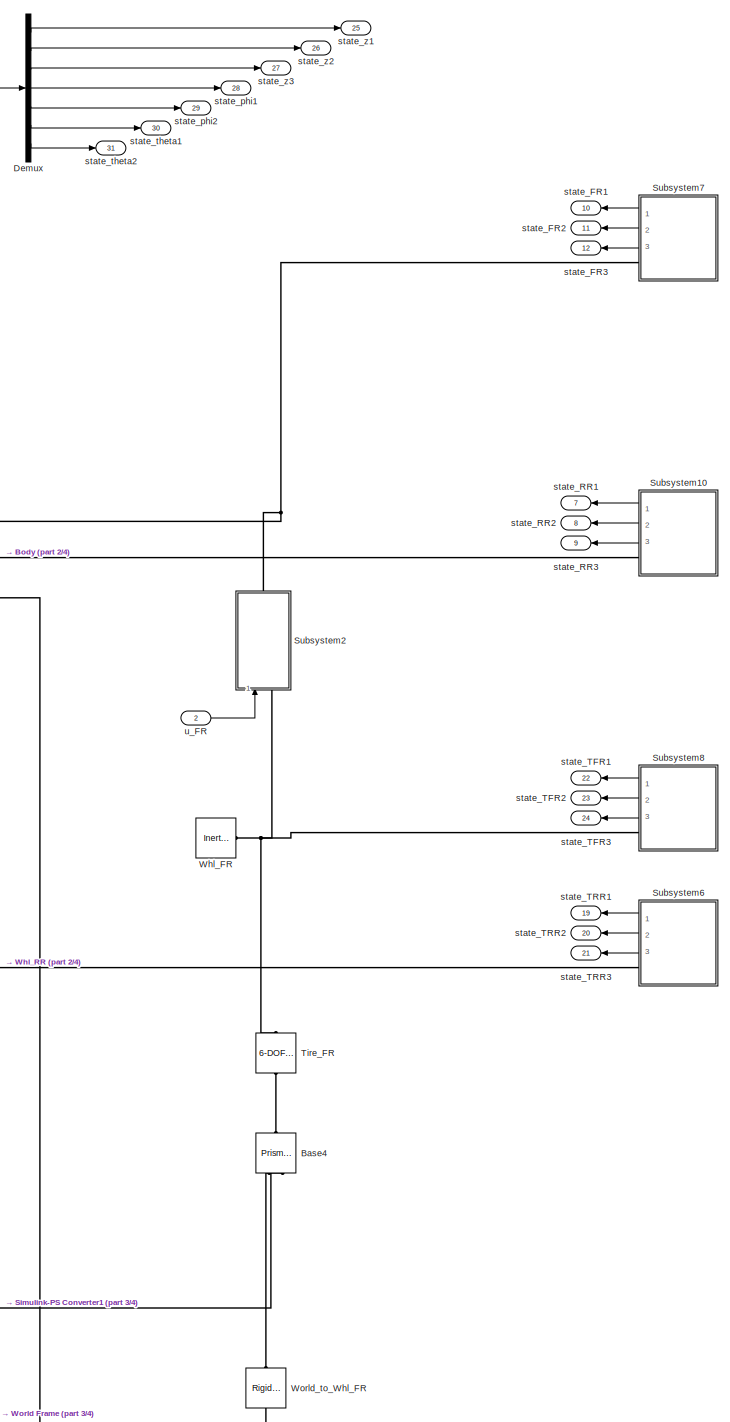
[diagram: root canvas - part 1/4, right side, full height]
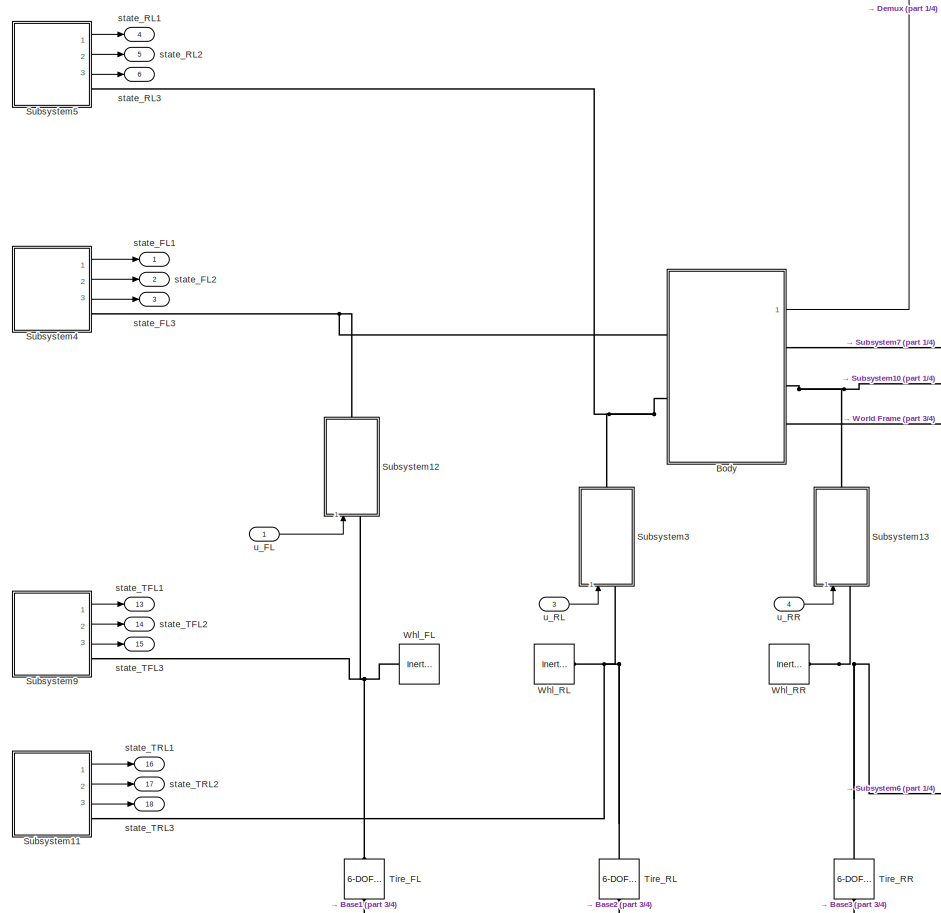
[diagram: root canvas - part 2/4, central region]
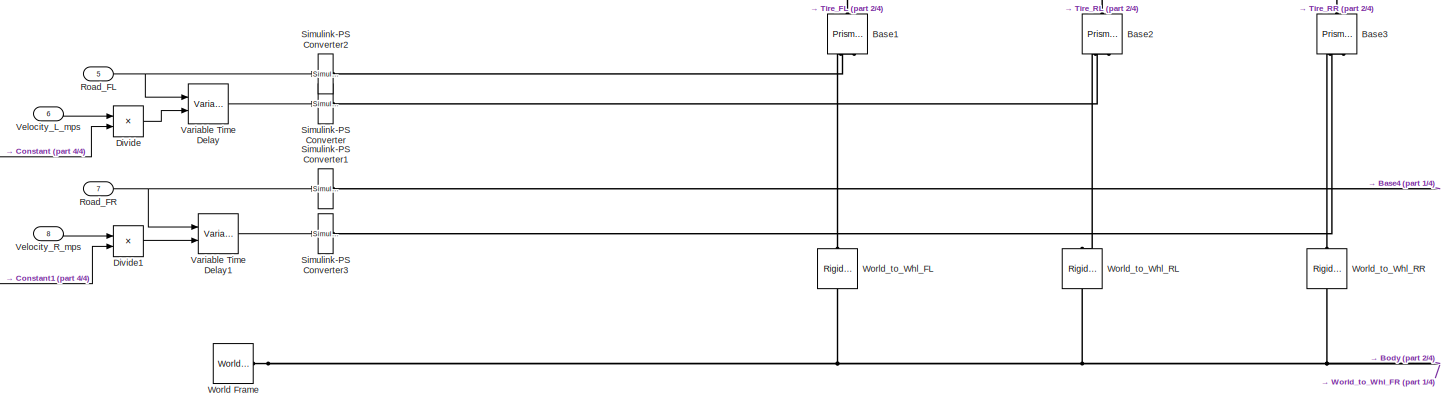
[diagram: root canvas - part 3/4, bottom center region]
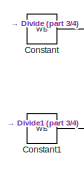
[diagram: root canvas - part 4/4, bottom left region]
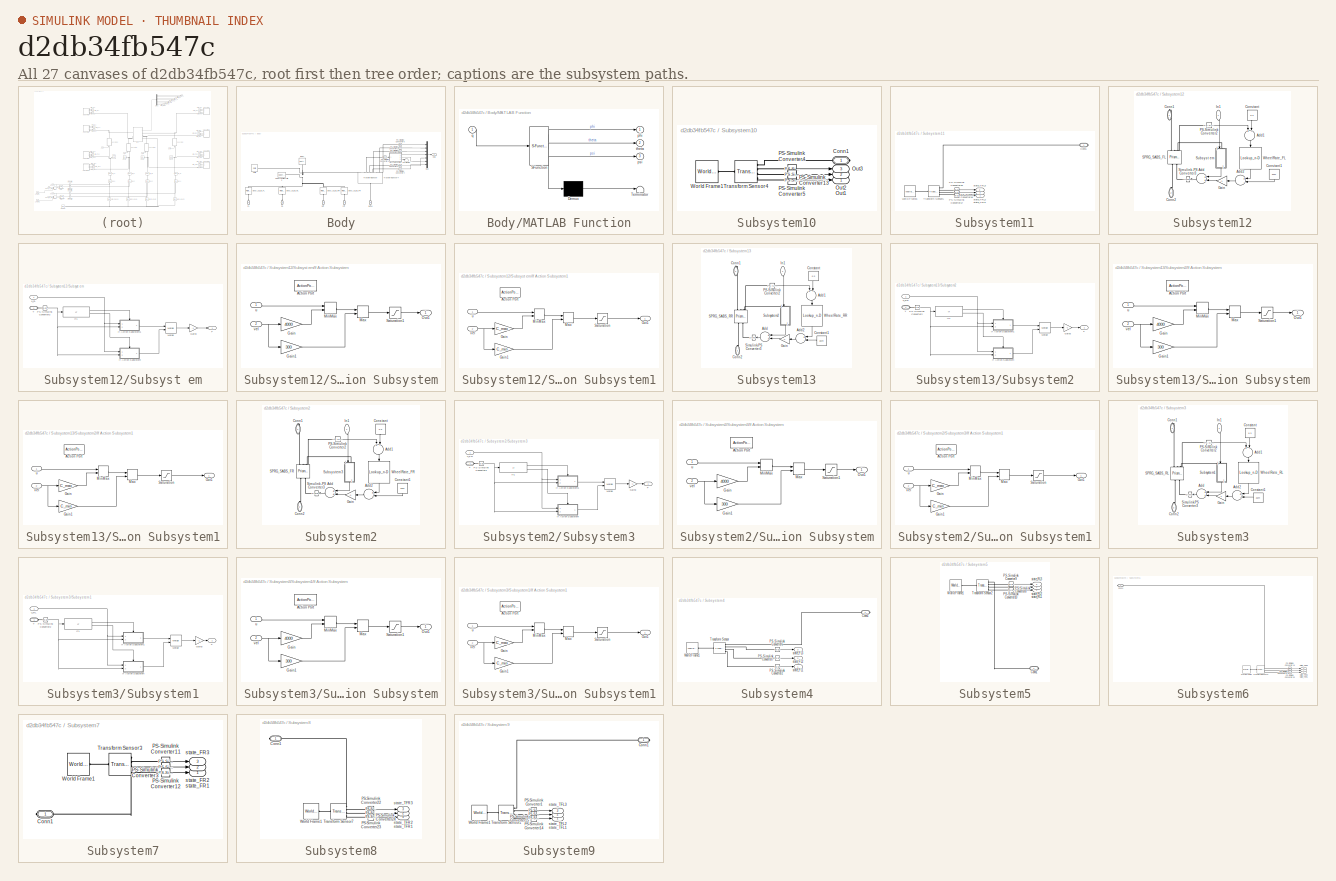
[diagram: thumbnail index - all 27 canvases of the model, root first then tree order]
MODEL slx_d2db34fb547c
KIND model
CONFIG AbsTol = auto
CONFIG EnableMultiTasking = off
CONFIG FixedStep = 0.002
CONFIG MaxStep = auto
CONFIG MinStep = auto
CONFIG PreLoadFcn = fullcar_data
CONFIG RelTol = 1e-3
CONFIG SampleTimeConstraint = Unconstrained
CONFIG Solver = FixedStepAuto
CONFIG SolverName = FixedStepAuto
CONFIG StartTime = 0.0
CONFIG StopTime = inf
BLOCK [Reference] Base1  REF=sm_lib/Joints/Prismatic
Joint
  Ports = [0, 0, 0, 0, 0, 2, 1]
  SourceBlock = sm_lib/Joints/Prismatic\nJoint
  SourceProductBaseCode = MS
  SourceProductName = Simscape Multibody
  SourceType = Prismatic\nJoint
BLOCK [Reference] Base2  REF=sm_lib/Joints/Prismatic
Joint
  Ports = [0, 0, 0, 0, 0, 2, 1]
  SourceBlock = sm_lib/Joints/Prismatic\nJoint
  SourceProductBaseCode = MS
  SourceProductName = Simscape Multibody
  SourceType = Prismatic\nJoint
BLOCK [Reference] Base3  REF=sm_lib/Joints/Prismatic
Joint
  Ports = [0, 0, 0, 0, 0, 2, 1]
  SourceBlock = sm_lib/Joints/Prismatic\nJoint
  SourceProductBaseCode = MS
  SourceProductName = Simscape Multibody
  SourceType = Prismatic\nJoint
BLOCK [Reference] Base4  REF=sm_lib/Joints/Prismatic
Joint
  Ports = [0, 0, 0, 0, 0, 2, 1]
  SourceBlock = sm_lib/Joints/Prismatic\nJoint
  SourceProductBaseCode = MS
  SourceProductName = Simscape Multibody
  SourceType = Prismatic\nJoint
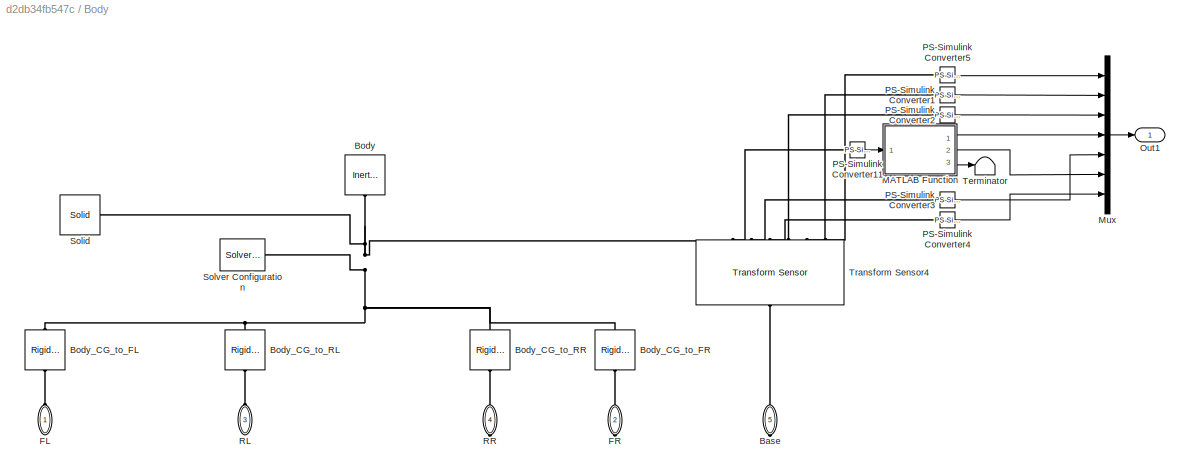
BLOCK [SubSystem] Body
  Ports = [0, 1, 0, 0, 0, 2, 3]
  RequestExecContextInheritance = off
BLOCK [PMIOPort] Body/Base
  Port = 5
  Side = Right
BLOCK [Reference] Body/Body  REF=sm_lib/Body Elements/Inertia
  Ports = [0, 0, 0, 0, 0, 0, 1]
  SourceBlock = sm_lib/Body Elements/Inertia
  SourceProductBaseCode = MS
  SourceProductName = Simscape Multibody
  SourceType = Inertia
BLOCK [Reference] Body/Body_CG_to_FL  REF=sm_lib/Frames and
Transforms/Rigid
Transform
  Ports = [0, 0, 0, 0, 0, 1, 1]
  SourceBlock = sm_lib/Frames and\nTransforms/Rigid\nTransform
  SourceProductBaseCode = MS
  SourceProductName = Simscape Multibody
  SourceType = Rigid\nTransform
BLOCK [Reference] Body/Body_CG_to_FR  REF=sm_lib/Frames and
Transforms/Rigid
Transform
  Ports = [0, 0, 0, 0, 0, 1, 1]
  SourceBlock = sm_lib/Frames and\nTransforms/Rigid\nTransform
  SourceProductBaseCode = MS
  SourceProductName = Simscape Multibody
  SourceType = Rigid\nTransform
BLOCK [Reference] Body/Body_CG_to_RL  REF=sm_lib/Frames and
Transforms/Rigid
Transform
  Ports = [0, 0, 0, 0, 0, 1, 1]
  SourceBlock = sm_lib/Frames and\nTransforms/Rigid\nTransform
  SourceProductBaseCode = MS
  SourceProductName = Simscape Multibody
  SourceType = Rigid\nTransform
BLOCK [Reference] Body/Body_CG_to_RR  REF=sm_lib/Frames and
Transforms/Rigid
Transform
  Ports = [0, 0, 0, 0, 0, 1, 1]
  SourceBlock = sm_lib/Frames and\nTransforms/Rigid\nTransform
  SourceProductBaseCode = MS
  SourceProductName = Simscape Multibody
  SourceType = Rigid\nTransform
BLOCK [PMIOPort] Body/FL
  Side = Left
BLOCK [PMIOPort] Body/FR
  Port = 2
  Side = Right
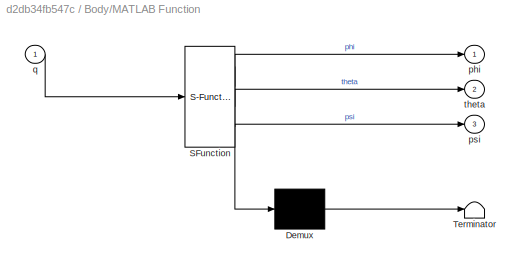
BLOCK [SubSystem] Body/MATLAB Function
  ErrorFcn = Stateflow.Translate.translate
  PermitHierarchicalResolution = ExplicitOnly
  Ports = [1, 3]
  RequestExecContextInheritance = off
  SFBlockType = MATLAB Function
  TreatAsAtomicUnit = on
BLOCK [Demux] Body/MATLAB Function/ Demux 
  Outputs = 1
  Ports = [1, 1]
BLOCK [S-Function] Body/MATLAB Function/ SFunction 
  EnableBusSupport = on
  FunctionName = sf_sfun
  PortCounts = [1 4]
  Ports = [1, 4]
  SFcnIsStateOwnerBlock = off
  SFunctionDeploymentMode = off
  Tag = Stateflow S-Function Fullcar_model 2
BLOCK [Terminator] Body/MATLAB Function/ Terminator 
BLOCK [Outport] Body/MATLAB Function/phi
  IconDisplay = Port number
BLOCK [Outport] Body/MATLAB Function/psi
  IconDisplay = Port number
  Port = 3
BLOCK [Inport] Body/MATLAB Function/q
  IconDisplay = Port number
BLOCK [Outport] Body/MATLAB Function/theta
  IconDisplay = Port number
  Port = 2
BLOCK [Mux] Body/Mux
  DisplayOption = bar
  Inputs = 7
  Ports = [7, 1]
BLOCK [Outport] Body/Out1
  IconDisplay = Port number
BLOCK [Reference] Body/PS-Simulink Converter1  REF=nesl_utility/PS-Simulink
Converter
  Ports = [0, 1, 0, 0, 0, 1]
  SourceBlock = nesl_utility/PS-Simulink\nConverter
  SourceProductBaseCode = SS
  SourceProductName = Simscape
  SourceType = PS-Simulink\nConverter
BLOCK [Reference] Body/PS-Simulink Converter11  REF=nesl_utility/PS-Simulink
Converter
  Ports = [0, 1, 0, 0, 0, 1]
  SourceBlock = nesl_utility/PS-Simulink\nConverter
  SourceProductBaseCode = SS
  SourceProductName = Simscape
  SourceType = PS-Simulink\nConverter
BLOCK [Reference] Body/PS-Simulink Converter2  REF=nesl_utility/PS-Simulink
Converter
  Ports = [0, 1, 0, 0, 0, 1]
  SourceBlock = nesl_utility/PS-Simulink\nConverter
  SourceProductBaseCode = SS
  SourceProductName = Simscape
  SourceType = PS-Simulink\nConverter
BLOCK [Reference] Body/PS-Simulink Converter3  REF=nesl_utility/PS-Simulink
Converter
  Ports = [0, 1, 0, 0, 0, 1]
  SourceBlock = nesl_utility/PS-Simulink\nConverter
  SourceProductBaseCode = SS
  SourceProductName = Simscape
  SourceType = PS-Simulink\nConverter
BLOCK [Reference] Body/PS-Simulink Converter4  REF=nesl_utility/PS-Simulink
Converter
  Ports = [0, 1, 0, 0, 0, 1]
  SourceBlock = nesl_utility/PS-Simulink\nConverter
  SourceProductBaseCode = SS
  SourceProductName = Simscape
  SourceType = PS-Simulink\nConverter
BLOCK [Reference] Body/PS-Simulink Converter5  REF=nesl_utility/PS-Simulink
Converter
  Ports = [0, 1, 0, 0, 0, 1]
  SourceBlock = nesl_utility/PS-Simulink\nConverter
  SourceProductBaseCode = SS
  SourceProductName = Simscape
  SourceType = PS-Simulink\nConverter
BLOCK [PMIOPort] Body/RL
  Port = 3
  Side = Left
BLOCK [PMIOPort] Body/RR
  Port = 4
  Side = Right
BLOCK [Reference] Body/Solid  REF=sm_lib/Body Elements/Solid
  Ports = [0, 0, 0, 0, 0, 0, 1]
  SourceBlock = sm_lib/Body Elements/Solid
  SourceProductBaseCode = MS
  SourceProductName = Simscape Multibody
  SourceType = Solid
BLOCK [Reference] Body/Solver Configuration  REF=nesl_utility/Solver
Configuration
  Ports = [0, 0, 0, 0, 0, 0, 1]
  SourceBlock = nesl_utility/Solver\nConfiguration
  SourceProductBaseCode = SS
  SourceProductName = Simscape
  SourceType = Solver\nConfiguration
BLOCK [Terminator] Body/Terminator
BLOCK [Reference] Body/Transform Sensor4  REF=sm_lib/Frames and
Transforms/Transform
Sensor
  Ports = [0, 0, 0, 0, 0, 1, 7]
  SourceBlock = sm_lib/Frames and\nTransforms/Transform\nSensor
  SourceProductBaseCode = MS
  SourceProductName = Simscape Multibody
  SourceType = Transform\nSensor
BLOCK [Constant] Constant
  Value = WB
BLOCK [Constant] Constant1
  Value = WB
BLOCK [Demux] Demux
  DisplayOption = bar
  Outputs = 7
  Ports = [1, 7]
BLOCK [Product] Divide
  InputSameDT = off
  Inputs = /*
  OutDataTypeStr = Inherit: Inherit via internal rule
  Ports = [2, 1]
  RndMeth = Floor
  SaturateOnIntegerOverflow = off
BLOCK [Product] Divide1
  InputSameDT = off
  Inputs = /*
  OutDataTypeStr = Inherit: Inherit via internal rule
  Ports = [2, 1]
  RndMeth = Floor
  SaturateOnIntegerOverflow = off
BLOCK [Inport] Road_FL 
  IconDisplay = Port number
  Port = 5
BLOCK [Inport] Road_FR 
  IconDisplay = Port number
  Port = 7
BLOCK [Reference] Simulink-PS Converter  REF=nesl_utility/Simulink-PS
Converter
  Ports = [1, 0, 0, 0, 0, 0, 1]
  SourceBlock = nesl_utility/Simulink-PS\nConverter
  SourceProductBaseCode = SS
  SourceProductName = Simscape
  SourceType = Simulink-PS\nConverter
BLOCK [Reference] Simulink-PS Converter1  REF=nesl_utility/Simulink-PS
Converter
  Ports = [1, 0, 0, 0, 0, 0, 1]
  SourceBlock = nesl_utility/Simulink-PS\nConverter
  SourceProductBaseCode = SS
  SourceProductName = Simscape
  SourceType = Simulink-PS\nConverter
BLOCK [Reference] Simulink-PS Converter2  REF=nesl_utility/Simulink-PS
Converter
  Ports = [1, 0, 0, 0, 0, 0, 1]
  SourceBlock = nesl_utility/Simulink-PS\nConverter
  SourceProductBaseCode = SS
  SourceProductName = Simscape
  SourceType = Simulink-PS\nConverter
BLOCK [Reference] Simulink-PS Converter3  REF=nesl_utility/Simulink-PS
Converter
  Ports = [1, 0, 0, 0, 0, 0, 1]
  SourceBlock = nesl_utility/Simulink-PS\nConverter
  SourceProductBaseCode = SS
  SourceProductName = Simscape
  SourceType = Simulink-PS\nConverter
BLOCK [SubSystem] Subsystem10
  Ports = [0, 3, 0, 0, 0, 0, 1]
  RequestExecContextInheritance = off
BLOCK [PMIOPort] Subsystem10/Conn1
  Side = Right
BLOCK [Outport] Subsystem10/Out1
  IconDisplay = Port number
BLOCK [Outport] Subsystem10/Out2
  IconDisplay = Port number
  Port = 2
BLOCK [Outport] Subsystem10/Out3
  IconDisplay = Port number
  Port = 3
BLOCK [Reference] Subsystem10/PS-Simulink Converter13  REF=nesl_utility/PS-Simulink
Converter
  Ports = [0, 1, 0, 0, 0, 1]
  SourceBlock = nesl_utility/PS-Simulink\nConverter
  SourceProductBaseCode = SS
  SourceProductName = Simscape
  SourceType = PS-Simulink\nConverter
BLOCK [Reference] Subsystem10/PS-Simulink Converter4  REF=nesl_utility/PS-Simulink
Converter
  Ports = [0, 1, 0, 0, 0, 1]
  SourceBlock = nesl_utility/PS-Simulink\nConverter
  SourceProductBaseCode = SS
  SourceProductName = Simscape
  SourceType = PS-Simulink\nConverter
BLOCK [Reference] Subsystem10/PS-Simulink Converter5  REF=nesl_utility/PS-Simulink
Converter
  Ports = [0, 1, 0, 0, 0, 1]
  SourceBlock = nesl_utility/PS-Simulink\nConverter
  SourceProductBaseCode = SS
  SourceProductName = Simscape
  SourceType = PS-Simulink\nConverter
BLOCK [Reference] Subsystem10/Transform Sensor4  REF=sm_lib/Frames and
Transforms/Transform
Sensor
  Ports = [0, 0, 0, 0, 0, 1, 4]
  SourceBlock = sm_lib/Frames and\nTransforms/Transform\nSensor
  SourceProductBaseCode = MS
  SourceProductName = Simscape Multibody
  SourceType = Transform\nSensor
BLOCK [Reference] Subsystem10/World Frame1  REF=sm_lib/Frames and
Transforms/World Frame
  Ports = [0, 0, 0, 0, 0, 0, 1]
  SourceBlock = sm_lib/Frames and\nTransforms/World Frame
  SourceProductBaseCode = MS
  SourceProductName = Simscape Multibody
  SourceType = World Frame
BLOCK [SubSystem] Subsystem11
  Ports = [0, 3, 0, 0, 0, 0, 1]
  RequestExecContextInheritance = off
BLOCK [PMIOPort] Subsystem11/Conn1
  Side = Right
BLOCK [Reference] Subsystem11/PS-Simulink Converter16  REF=nesl_utility/PS-Simulink
Converter
  Ports = [0, 1, 0, 0, 0, 1]
  SourceBlock = nesl_utility/PS-Simulink\nConverter
  SourceProductBaseCode = SS
  SourceProductName = Simscape
  SourceType = PS-Simulink\nConverter
BLOCK [Reference] Subsystem11/PS-Simulink Converter17  REF=nesl_utility/PS-Simulink
Converter
  Ports = [0, 1, 0, 0, 0, 1]
  SourceBlock = nesl_utility/PS-Simulink\nConverter
  SourceProductBaseCode = SS
  SourceProductName = Simscape
  SourceType = PS-Simulink\nConverter
BLOCK [Reference] Subsystem11/PS-Simulink Converter18  REF=nesl_utility/PS-Simulink
Converter
  Ports = [0, 1, 0, 0, 0, 1]
  SourceBlock = nesl_utility/PS-Simulink\nConverter
  SourceProductBaseCode = SS
  SourceProductName = Simscape
  SourceType = PS-Simulink\nConverter
BLOCK [Reference] Subsystem11/Transform Sensor5  REF=sm_lib/Frames and
Transforms/Transform
Sensor
  Ports = [0, 0, 0, 0, 0, 1, 4]
  SourceBlock = sm_lib/Frames and\nTransforms/Transform\nSensor
  SourceProductBaseCode = MS
  SourceProductName = Simscape Multibody
  SourceType = Transform\nSensor
BLOCK [Reference] Subsystem11/World Frame1  REF=sm_lib/Frames and
Transforms/World Frame
  Ports = [0, 0, 0, 0, 0, 0, 1]
  SourceBlock = sm_lib/Frames and\nTransforms/World Frame
  SourceProductBaseCode = MS
  SourceProductName = Simscape Multibody
  SourceType = World Frame
BLOCK [Outport] Subsystem11/state_TRL1
  IconDisplay = Port number
BLOCK [Outport] Subsystem11/state_TRL2
  IconDisplay = Port number
  Port = 2
BLOCK [Outport] Subsystem11/state_TRL3
  IconDisplay = Port number
  Port = 3
BLOCK [SubSystem] Subsystem12
  Ports = [1, 0, 0, 0, 0, 1, 1]
  RequestExecContextInheritance = off
BLOCK [Sum] Subsystem12/Add
  InputSameDT = off
  OutDataTypeStr = Inherit: Inherit via internal rule
  Ports = [2, 1]
  SaturateOnIntegerOverflow = off
BLOCK [Sum] Subsystem12/Add1
  InputSameDT = off
  Inputs = +-
  OutDataTypeStr = Inherit: Inherit via internal rule
  Ports = [2, 1]
  SaturateOnIntegerOverflow = off
BLOCK [Sum] Subsystem12/Add2
  InputSameDT = off
  Inputs = +-
  OutDataTypeStr = Inherit: Inherit via internal rule
  Ports = [2, 1]
  SaturateOnIntegerOverflow = off
BLOCK [PMIOPort] Subsystem12/Conn1
  Side = Right
BLOCK [PMIOPort] Subsystem12/Conn2
  Port = 2
  Side = Left
BLOCK [Constant] Subsystem12/Constant
  Value = 0.3
BLOCK [Constant] Subsystem12/Constant1
  Value = 3707
BLOCK [Gain] Subsystem12/Gain
  Gain = -1
  OutDataTypeStr = Inherit: Inherit via internal rule
  ParamDataTypeStr = Inherit: Inherit via internal rule
  SaturateOnIntegerOverflow = off
BLOCK [Inport] Subsystem12/In1
  IconDisplay = Port number
BLOCK [Reference] Subsystem12/PS-Simulink Converter2  REF=nesl_utility/PS-Simulink
Converter
  Ports = [0, 1, 0, 0, 0, 1]
  SourceBlock = nesl_utility/PS-Simulink\nConverter
  SourceProductBaseCode = SS
  SourceProductName = Simscape
  SourceType = PS-Simulink\nConverter
BLOCK [Reference] Subsystem12/SPRG_SABS_FL  REF=sm_lib/Joints/Prismatic
Joint
  Ports = [0, 0, 0, 0, 0, 2, 3]
  SourceBlock = sm_lib/Joints/Prismatic\nJoint
  SourceProductBaseCode = MS
  SourceProductName = Simscape Multibody
  SourceType = Prismatic\nJoint
BLOCK [Reference] Subsystem12/Simulink-PS Converter3  REF=nesl_utility/Simulink-PS
Converter
  Ports = [1, 0, 0, 0, 0, 0, 1]
  SourceBlock = nesl_utility/Simulink-PS\nConverter
  SourceProductBaseCode = SS
  SourceProductName = Simscape
  SourceType = Simulink-PS\nConverter
BLOCK [SubSystem] Subsystem12/Subsyst em
  Ports = [1, 1, 0, 0, 0, 1]
  RequestExecContextInheritance = off
BLOCK [Outport] Subsystem12/Subsyst em/F
  IconDisplay = Port number
BLOCK [Gain] Subsystem12/Subsyst em/Gain3
  Gain = -1
  OutDataTypeStr = Inherit: Inherit via internal rule
  ParamDataTypeStr = Inherit: Inherit via internal rule
  SaturateOnIntegerOverflow = off
BLOCK [SubSystem] Subsystem12/Subsyst em/If Action Subsystem
  Ports = [2, 1, 0, 0, 0, 0, 0, 1]
  RequestExecContextInheritance = off
  TreatAsAtomicUnit = on
BLOCK [ActionPort] Subsystem12/Subsyst em/If Action Subsystem/Action Port
  ActionType = else
BLOCK [Gain] Subsystem12/Subsyst em/If Action Subsystem/Gain
  Gain = 4000
  OutDataTypeStr = Inherit: Inherit via internal rule
  ParamDataTypeStr = Inherit: Inherit via internal rule
  SaturateOnIntegerOverflow = off
BLOCK [Gain] Subsystem12/Subsyst em/If Action Subsystem/Gain1
  Gain = 300
  OutDataTypeStr = Inherit: Inherit via internal rule
  ParamDataTypeStr = Inherit: Inherit via internal rule
  SaturateOnIntegerOverflow = off
BLOCK [MinMax] Subsystem12/Subsyst em/If Action Subsystem/Max
  Function = max
  InputSameDT = off
  Inputs = 2
  Ports = [2, 1]
  SaturateOnIntegerOverflow = off
BLOCK [MinMax] Subsystem12/Subsyst em/If Action Subsystem/MinMax
  InputSameDT = off
  Inputs = 2
  Ports = [2, 1]
  SaturateOnIntegerOverflow = off
BLOCK [Outport] Subsystem12/Subsyst em/If Action Subsystem/Out1
  IconDisplay = Port number
BLOCK [Saturate] Subsystem12/Subsyst em/If Action Subsystem/Saturation1
  InputPortMap = u0
  LowerLimit = -sat_limit
  Ports = [1, 1]
  UpperLimit = sat_limit
BLOCK [Inport] Subsystem12/Subsyst em/If Action Subsystem/u 
  IconDisplay = Port number
BLOCK [Inport] Subsystem12/Subsyst em/If Action Subsystem/vel 
  IconDisplay = Port number
  Port = 2
BLOCK [SubSystem] Subsystem12/Subsyst em/If Action Subsystem1
  Ports = [2, 1, 0, 0, 0, 0, 0, 1]
  RequestExecContextInheritance = off
  TreatAsAtomicUnit = on
BLOCK [ActionPort] Subsystem12/Subsyst em/If Action Subsystem1/Action Port
BLOCK [Gain] Subsystem12/Subsyst em/If Action Subsystem1/Gain
  Gain = C_max
  OutDataTypeStr = Inherit: Inherit via internal rule
  ParamDataTypeStr = Inherit: Inherit via internal rule
  SaturateOnIntegerOverflow = off
BLOCK [Gain] Subsystem12/Subsyst em/If Action Subsystem1/Gain1
  Gain = C_min
  OutDataTypeStr = Inherit: Inherit via internal rule
  ParamDataTypeStr = Inherit: Inherit via internal rule
  SaturateOnIntegerOverflow = off
BLOCK [MinMax] Subsystem12/Subsyst em/If Action Subsystem1/Max
  Function = max
  InputSameDT = off
  Inputs = 2
  Ports = [2, 1]
  SaturateOnIntegerOverflow = off
BLOCK [MinMax] Subsystem12/Subsyst em/If Action Subsystem1/MinMax
  InputSameDT = off
  Inputs = 2
  Ports = [2, 1]
  SaturateOnIntegerOverflow = off
BLOCK [Outport] Subsystem12/Subsyst em/If Action Subsystem1/Out1
  IconDisplay = Port number
BLOCK [Saturate] Subsystem12/Subsyst em/If Action Subsystem1/Saturation
  InputPortMap = u0
  LowerLimit = -sat_limit
  Ports = [1, 1]
  UpperLimit = sat_limit
BLOCK [Inport] Subsystem12/Subsyst em/If Action Subsystem1/u 
  IconDisplay = Port number
BLOCK [Inport] Subsystem12/Subsyst em/If Action Subsystem1/vel 
  IconDisplay = Port number
  Port = 2
BLOCK [If] Subsystem12/Subsyst em/If1
  Ports = [1, 2]
BLOCK [Merge] Subsystem12/Subsyst em/Merge
  Ports = [2, 1]
BLOCK [Reference] Subsystem12/Subsyst em/PS-Simulink Converter2  REF=nesl_utility/PS-Simulink
Converter
  Ports = [0, 1, 0, 0, 0, 1]
  SourceBlock = nesl_utility/PS-Simulink\nConverter
  SourceProductBaseCode = SS
  SourceProductName = Simscape
  SourceType = PS-Simulink\nConverter
BLOCK [Inport] Subsystem12/Subsyst em/u_FL 
  IconDisplay = Port number
BLOCK [PMIOPort] Subsystem12/Subsyst em/v 
  Side = Left
BLOCK [Lookup_n-D] Subsystem12/WheelRate_FL
  BreakpointsForDimension1 = [-0.103600000000000\n-0.103500000000000\n-0.103400000000000\n-0.103300000000000\n-0.103200000000000\n-0.103100000000000\n-0.103000000000000\n-0.102900000000000\n-0.102800000000000\n-0.102700000000000\n-0.102600000000000\n-0.102500000000000\n-0.102400000000000\n-0.102300000000000\n-0.102200000000000\n-0.102100000000000\n-0.102000000000000\n-0.101900000000000\n-0.101800000000000\n-0.101700000000000\n-0.101600000000000\n...<+32367ch>
  InternalRulePriority = Speed
  NumberOfTableDimensions = 1
  Ports = [1, 1]
  RndMeth = Simplest
  Table = [-1010.79646000000\n-978.760220007999\n-946.723980015998\n-914.687740024001\n-882.651500032000\n-850.615260039999\n-818.579020047999\n-786.542780055998\n-754.506540064001\n-722.470300072000\n-690.434060079999\n-658.397820087998\n-626.361580095997\n-594.325340104001\n-562.289100112000\n-530.252860119999\n-498.216620127998\n-466.180380135997\n-434.144140144000\n-402.107900151999\n-370.071660159998\n-338.035420167998\n-30...<+27870ch>
BLOCK [SubSystem] Subsystem13
  Ports = [1, 0, 0, 0, 0, 1, 1]
  RequestExecContextInheritance = off
BLOCK [Sum] Subsystem13/Add
  InputSameDT = off
  OutDataTypeStr = Inherit: Inherit via internal rule
  Ports = [2, 1]
  SaturateOnIntegerOverflow = off
BLOCK [Sum] Subsystem13/Add1
  InputSameDT = off
  Inputs = +-
  OutDataTypeStr = Inherit: Inherit via internal rule
  Ports = [2, 1]
  SaturateOnIntegerOverflow = off
BLOCK [Sum] Subsystem13/Add2
  InputSameDT = off
  Inputs = +-
  OutDataTypeStr = Inherit: Inherit via internal rule
  Ports = [2, 1]
  SaturateOnIntegerOverflow = off
BLOCK [PMIOPort] Subsystem13/Conn1
  Side = Right
BLOCK [PMIOPort] Subsystem13/Conn2
  Port = 2
  Side = Left
BLOCK [Constant] Subsystem13/Constant
  Value = 0.3
BLOCK [Constant] Subsystem13/Constant1
  Value = 2644
BLOCK [Gain] Subsystem13/Gain
  Gain = -1
  OutDataTypeStr = Inherit: Inherit via internal rule
  ParamDataTypeStr = Inherit: Inherit via internal rule
  SaturateOnIntegerOverflow = off
BLOCK [Inport] Subsystem13/In1
  IconDisplay = Port number
BLOCK [Reference] Subsystem13/PS-Simulink Converter2  REF=nesl_utility/PS-Simulink
Converter
  Ports = [0, 1, 0, 0, 0, 1]
  SourceBlock = nesl_utility/PS-Simulink\nConverter
  SourceProductBaseCode = SS
  SourceProductName = Simscape
  SourceType = PS-Simulink\nConverter
BLOCK [Reference] Subsystem13/SPRG_SABS_RR  REF=sm_lib/Joints/Prismatic
Joint
  Ports = [0, 0, 0, 0, 0, 2, 3]
  SourceBlock = sm_lib/Joints/Prismatic\nJoint
  SourceProductBaseCode = MS
  SourceProductName = Simscape Multibody
  SourceType = Prismatic\nJoint
BLOCK [Reference] Subsystem13/Simulink-PS Converter3  REF=nesl_utility/Simulink-PS
Converter
  Ports = [1, 0, 0, 0, 0, 0, 1]
  SourceBlock = nesl_utility/Simulink-PS\nConverter
  SourceProductBaseCode = SS
  SourceProductName = Simscape
  SourceType = Simulink-PS\nConverter
BLOCK [SubSystem] Subsystem13/Subsystem2
  Ports = [1, 1, 0, 0, 0, 1]
  RequestExecContextInheritance = off
BLOCK [Outport] Subsystem13/Subsystem2/F
  IconDisplay = Port number
BLOCK [Gain] Subsystem13/Subsystem2/Gain3
  Gain = -1
  OutDataTypeStr = Inherit: Inherit via internal rule
  ParamDataTypeStr = Inherit: Inherit via internal rule
  SaturateOnIntegerOverflow = off
BLOCK [SubSystem] Subsystem13/Subsystem2/If Action Subsystem
  Ports = [2, 1, 0, 0, 0, 0, 0, 1]
  RequestExecContextInheritance = off
  TreatAsAtomicUnit = on
BLOCK [ActionPort] Subsystem13/Subsystem2/If Action Subsystem/Action Port
  ActionType = else
BLOCK [Gain] Subsystem13/Subsystem2/If Action Subsystem/Gain
  Gain = 4000
  OutDataTypeStr = Inherit: Inherit via internal rule
  ParamDataTypeStr = Inherit: Inherit via internal rule
  SaturateOnIntegerOverflow = off
BLOCK [Gain] Subsystem13/Subsystem2/If Action Subsystem/Gain1
  Gain = 300
  OutDataTypeStr = Inherit: Inherit via internal rule
  ParamDataTypeStr = Inherit: Inherit via internal rule
  SaturateOnIntegerOverflow = off
BLOCK [MinMax] Subsystem13/Subsystem2/If Action Subsystem/Max
  Function = max
  InputSameDT = off
  Inputs = 2
  Ports = [2, 1]
  SaturateOnIntegerOverflow = off
BLOCK [MinMax] Subsystem13/Subsystem2/If Action Subsystem/MinMax
  InputSameDT = off
  Inputs = 2
  Ports = [2, 1]
  SaturateOnIntegerOverflow = off
BLOCK [Outport] Subsystem13/Subsystem2/If Action Subsystem/Out1
  IconDisplay = Port number
BLOCK [Saturate] Subsystem13/Subsystem2/If Action Subsystem/Saturation1
  InputPortMap = u0
  LowerLimit = -sat_limit
  Ports = [1, 1]
  UpperLimit = sat_limit
BLOCK [Inport] Subsystem13/Subsystem2/If Action Subsystem/u 
  IconDisplay = Port number
BLOCK [Inport] Subsystem13/Subsystem2/If Action Subsystem/vel 
  IconDisplay = Port number
  Port = 2
BLOCK [SubSystem] Subsystem13/Subsystem2/If Action Subsystem1
  Ports = [2, 1, 0, 0, 0, 0, 0, 1]
  RequestExecContextInheritance = off
  TreatAsAtomicUnit = on
BLOCK [ActionPort] Subsystem13/Subsystem2/If Action Subsystem1/Action Port
BLOCK [Gain] Subsystem13/Subsystem2/If Action Subsystem1/Gain
  Gain = C_max
  OutDataTypeStr = Inherit: Inherit via internal rule
  ParamDataTypeStr = Inherit: Inherit via internal rule
  SaturateOnIntegerOverflow = off
BLOCK [Gain] Subsystem13/Subsystem2/If Action Subsystem1/Gain1
  Gain = C_min
  OutDataTypeStr = Inherit: Inherit via internal rule
  ParamDataTypeStr = Inherit: Inherit via internal rule
  SaturateOnIntegerOverflow = off
BLOCK [MinMax] Subsystem13/Subsystem2/If Action Subsystem1/Max
  Function = max
  InputSameDT = off
  Inputs = 2
  Ports = [2, 1]
  SaturateOnIntegerOverflow = off
BLOCK [MinMax] Subsystem13/Subsystem2/If Action Subsystem1/MinMax
  InputSameDT = off
  Inputs = 2
  Ports = [2, 1]
  SaturateOnIntegerOverflow = off
BLOCK [Outport] Subsystem13/Subsystem2/If Action Subsystem1/Out1
  IconDisplay = Port number
BLOCK [Saturate] Subsystem13/Subsystem2/If Action Subsystem1/Saturation
  InputPortMap = u0
  LowerLimit = -sat_limit
  Ports = [1, 1]
  UpperLimit = sat_limit
BLOCK [Inport] Subsystem13/Subsystem2/If Action Subsystem1/u 
  IconDisplay = Port number
BLOCK [Inport] Subsystem13/Subsystem2/If Action Subsystem1/vel 
  IconDisplay = Port number
  Port = 2
BLOCK [If] Subsystem13/Subsystem2/If1
  Ports = [1, 2]
BLOCK [Merge] Subsystem13/Subsystem2/Merge
  Ports = [2, 1]
BLOCK [Reference] Subsystem13/Subsystem2/PS-Simulink Converter2  REF=nesl_utility/PS-Simulink
Converter
  Ports = [0, 1, 0, 0, 0, 1]
  SourceBlock = nesl_utility/PS-Simulink\nConverter
  SourceProductBaseCode = SS
  SourceProductName = Simscape
  SourceType = PS-Simulink\nConverter
BLOCK [Inport] Subsystem13/Subsystem2/u_RR 
  IconDisplay = Port number
BLOCK [PMIOPort] Subsystem13/Subsystem2/v 
  Side = Left
BLOCK [Lookup_n-D] Subsystem13/WheelRate_RR
  BreakpointsForDimension1 = [-0.0980000000000000\n-0.0975000000000000\n-0.0970000000000000\n-0.0965000000000000\n-0.0960000000000000\n-0.0955000000000000\n-0.0950000000000000\n-0.0945000000000000\n-0.0940000000000000\n-0.0935000000000000\n-0.0930000000000000\n-0.0925000000000000\n-0.0920000000000000\n-0.0915000000000000\n-0.0910000000000000\n-0.0905000000000000\n-0.0900000000000000\n-0.0895000000000000\n-0.0890000000000000\n-0.0885000000000000...<+6701ch>
  InternalRulePriority = Speed
  NumberOfTableDimensions = 1
  Ports = [1, 1]
  RndMeth = Simplest
  Table = [-1435.24406000000\n-1296.13166000000\n-1157.01926000000\n-1017.90686000000\n-878.794459999998\n-739.682059999998\n-600.569659999997\n-461.457259999997\n-322.344859999997\n-183.232459999997\n-44.1200599999982\n22.2150688200019\n88.5501976400018\n154.885326460002\n221.220455280002\n287.555584100000\n353.890712920000\n420.225841740000\n486.560970560000\n552.896099380000\n619.231228200000\n630.736880310000\n642.2425324200...<+5749ch>
BLOCK [SubSystem] Subsystem2
  Ports = [1, 0, 0, 0, 0, 1, 1]
  RequestExecContextInheritance = off
BLOCK [Sum] Subsystem2/Add
  InputSameDT = off
  OutDataTypeStr = Inherit: Inherit via internal rule
  Ports = [2, 1]
  SaturateOnIntegerOverflow = off
BLOCK [Sum] Subsystem2/Add1
  InputSameDT = off
  Inputs = +-
  OutDataTypeStr = Inherit: Inherit via internal rule
  Ports = [2, 1]
  SaturateOnIntegerOverflow = off
BLOCK [Sum] Subsystem2/Add2
  InputSameDT = off
  Inputs = +-
  OutDataTypeStr = Inherit: Inherit via internal rule
  Ports = [2, 1]
  SaturateOnIntegerOverflow = off
BLOCK [PMIOPort] Subsystem2/Conn1
  Side = Right
BLOCK [PMIOPort] Subsystem2/Conn2
  Port = 2
  Side = Left
BLOCK [Constant] Subsystem2/Constant
  Value = 0.3
BLOCK [Constant] Subsystem2/Constant1
  Value = 3707
BLOCK [Gain] Subsystem2/Gain
  Gain = -1
  OutDataTypeStr = Inherit: Inherit via internal rule
  ParamDataTypeStr = Inherit: Inherit via internal rule
  SaturateOnIntegerOverflow = off
BLOCK [Inport] Subsystem2/In1
  IconDisplay = Port number
BLOCK [Reference] Subsystem2/PS-Simulink Converter2  REF=nesl_utility/PS-Simulink
Converter
  Ports = [0, 1, 0, 0, 0, 1]
  SourceBlock = nesl_utility/PS-Simulink\nConverter
  SourceProductBaseCode = SS
  SourceProductName = Simscape
  SourceType = PS-Simulink\nConverter
BLOCK [Reference] Subsystem2/SPRG_SABS_FR  REF=sm_lib/Joints/Prismatic
Joint
  Ports = [0, 0, 0, 0, 0, 2, 3]
  SourceBlock = sm_lib/Joints/Prismatic\nJoint
  SourceProductBaseCode = MS
  SourceProductName = Simscape Multibody
  SourceType = Prismatic\nJoint
BLOCK [Reference] Subsystem2/Simulink-PS Converter3  REF=nesl_utility/Simulink-PS
Converter
  Ports = [1, 0, 0, 0, 0, 0, 1]
  SourceBlock = nesl_utility/Simulink-PS\nConverter
  SourceProductBaseCode = SS
  SourceProductName = Simscape
  SourceType = Simulink-PS\nConverter
BLOCK [SubSystem] Subsystem2/Subsystem3
  Ports = [1, 1, 0, 0, 0, 1]
  RequestExecContextInheritance = off
BLOCK [Outport] Subsystem2/Subsystem3/F
  IconDisplay = Port number
BLOCK [Gain] Subsystem2/Subsystem3/Gain3
  Gain = -1
  OutDataTypeStr = Inherit: Inherit via internal rule
  ParamDataTypeStr = Inherit: Inherit via internal rule
  SaturateOnIntegerOverflow = off
BLOCK [SubSystem] Subsystem2/Subsystem3/If Action Subsystem
  Ports = [2, 1, 0, 0, 0, 0, 0, 1]
  RequestExecContextInheritance = off
  TreatAsAtomicUnit = on
BLOCK [ActionPort] Subsystem2/Subsystem3/If Action Subsystem/Action Port
  ActionType = else
BLOCK [Gain] Subsystem2/Subsystem3/If Action Subsystem/Gain
  Gain = 4000
  OutDataTypeStr = Inherit: Inherit via internal rule
  ParamDataTypeStr = Inherit: Inherit via internal rule
  SaturateOnIntegerOverflow = off
BLOCK [Gain] Subsystem2/Subsystem3/If Action Subsystem/Gain1
  Gain = 300
  OutDataTypeStr = Inherit: Inherit via internal rule
  ParamDataTypeStr = Inherit: Inherit via internal rule
  SaturateOnIntegerOverflow = off
BLOCK [MinMax] Subsystem2/Subsystem3/If Action Subsystem/Max
  Function = max
  InputSameDT = off
  Inputs = 2
  Ports = [2, 1]
  SaturateOnIntegerOverflow = off
BLOCK [MinMax] Subsystem2/Subsystem3/If Action Subsystem/MinMax
  InputSameDT = off
  Inputs = 2
  Ports = [2, 1]
  SaturateOnIntegerOverflow = off
BLOCK [Outport] Subsystem2/Subsystem3/If Action Subsystem/Out1
  IconDisplay = Port number
BLOCK [Saturate] Subsystem2/Subsystem3/If Action Subsystem/Saturation1
  InputPortMap = u0
  LowerLimit = -sat_limit
  Ports = [1, 1]
  UpperLimit = sat_limit
BLOCK [Inport] Subsystem2/Subsystem3/If Action Subsystem/u 
  IconDisplay = Port number
BLOCK [Inport] Subsystem2/Subsystem3/If Action Subsystem/vel 
  IconDisplay = Port number
  Port = 2
BLOCK [SubSystem] Subsystem2/Subsystem3/If Action Subsystem1
  Ports = [2, 1, 0, 0, 0, 0, 0, 1]
  RequestExecContextInheritance = off
  TreatAsAtomicUnit = on
BLOCK [ActionPort] Subsystem2/Subsystem3/If Action Subsystem1/Action Port
BLOCK [Gain] Subsystem2/Subsystem3/If Action Subsystem1/Gain
  Gain = C_max
  OutDataTypeStr = Inherit: Inherit via internal rule
  ParamDataTypeStr = Inherit: Inherit via internal rule
  SaturateOnIntegerOverflow = off
BLOCK [Gain] Subsystem2/Subsystem3/If Action Subsystem1/Gain1
  Gain = C_min
  OutDataTypeStr = Inherit: Inherit via internal rule
  ParamDataTypeStr = Inherit: Inherit via internal rule
  SaturateOnIntegerOverflow = off
BLOCK [MinMax] Subsystem2/Subsystem3/If Action Subsystem1/Max
  Function = max
  InputSameDT = off
  Inputs = 2
  Ports = [2, 1]
  SaturateOnIntegerOverflow = off
BLOCK [MinMax] Subsystem2/Subsystem3/If Action Subsystem1/MinMax
  InputSameDT = off
  Inputs = 2
  Ports = [2, 1]
  SaturateOnIntegerOverflow = off
BLOCK [Outport] Subsystem2/Subsystem3/If Action Subsystem1/Out1
  IconDisplay = Port number
BLOCK [Saturate] Subsystem2/Subsystem3/If Action Subsystem1/Saturation
  InputPortMap = u0
  LowerLimit = -sat_limit
  Ports = [1, 1]
  UpperLimit = sat_limit
BLOCK [Inport] Subsystem2/Subsystem3/If Action Subsystem1/u 
  IconDisplay = Port number
BLOCK [Inport] Subsystem2/Subsystem3/If Action Subsystem1/vel 
  IconDisplay = Port number
  Port = 2
BLOCK [If] Subsystem2/Subsystem3/If1
  Ports = [1, 2]
BLOCK [Merge] Subsystem2/Subsystem3/Merge
  Ports = [2, 1]
BLOCK [Reference] Subsystem2/Subsystem3/PS-Simulink Converter2  REF=nesl_utility/PS-Simulink
Converter
  Ports = [0, 1, 0, 0, 0, 1]
  SourceBlock = nesl_utility/PS-Simulink\nConverter
  SourceProductBaseCode = SS
  SourceProductName = Simscape
  SourceType = PS-Simulink\nConverter
BLOCK [Inport] Subsystem2/Subsystem3/u_FR 
  IconDisplay = Port number
BLOCK [PMIOPort] Subsystem2/Subsystem3/v 
  Side = Left
BLOCK [Lookup_n-D] Subsystem2/WheelRate_FR
  BreakpointsForDimension1 = [-0.103600000000000\n-0.103500000000000\n-0.103400000000000\n-0.103300000000000\n-0.103200000000000\n-0.103100000000000\n-0.103000000000000\n-0.102900000000000\n-0.102800000000000\n-0.102700000000000\n-0.102600000000000\n-0.102500000000000\n-0.102400000000000\n-0.102300000000000\n-0.102200000000000\n-0.102100000000000\n-0.102000000000000\n-0.101900000000000\n-0.101800000000000\n-0.101700000000000\n-0.101600000000000\n...<+32367ch>
  InternalRulePriority = Speed
  NumberOfTableDimensions = 1
  Ports = [1, 1]
  RndMeth = Simplest
  Table = [-1010.79646000000\n-978.760220007999\n-946.723980015998\n-914.687740024001\n-882.651500032000\n-850.615260039999\n-818.579020047999\n-786.542780055998\n-754.506540064001\n-722.470300072000\n-690.434060079999\n-658.397820087998\n-626.361580095997\n-594.325340104001\n-562.289100112000\n-530.252860119999\n-498.216620127998\n-466.180380135997\n-434.144140144000\n-402.107900151999\n-370.071660159998\n-338.035420167998\n-30...<+27870ch>
BLOCK [SubSystem] Subsystem3
  Ports = [1, 0, 0, 0, 0, 1, 1]
  RequestExecContextInheritance = off
BLOCK [Sum] Subsystem3/Add
  InputSameDT = off
  OutDataTypeStr = Inherit: Inherit via internal rule
  Ports = [2, 1]
  SaturateOnIntegerOverflow = off
BLOCK [Sum] Subsystem3/Add1
  InputSameDT = off
  Inputs = +-
  OutDataTypeStr = Inherit: Inherit via internal rule
  Ports = [2, 1]
  SaturateOnIntegerOverflow = off
BLOCK [Sum] Subsystem3/Add2
  InputSameDT = off
  Inputs = +-
  OutDataTypeStr = Inherit: Inherit via internal rule
  Ports = [2, 1]
  SaturateOnIntegerOverflow = off
BLOCK [PMIOPort] Subsystem3/Conn1
  Side = Right
BLOCK [PMIOPort] Subsystem3/Conn2
  Port = 2
  Side = Left
BLOCK [Constant] Subsystem3/Constant
  Value = 0.3
BLOCK [Constant] Subsystem3/Constant1
  Value = 2644
BLOCK [Gain] Subsystem3/Gain
  Gain = -1
  OutDataTypeStr = Inherit: Inherit via internal rule
  ParamDataTypeStr = Inherit: Inherit via internal rule
  SaturateOnIntegerOverflow = off
BLOCK [Inport] Subsystem3/In1
  IconDisplay = Port number
BLOCK [Reference] Subsystem3/PS-Simulink Converter2  REF=nesl_utility/PS-Simulink
Converter
  Ports = [0, 1, 0, 0, 0, 1]
  SourceBlock = nesl_utility/PS-Simulink\nConverter
  SourceProductBaseCode = SS
  SourceProductName = Simscape
  SourceType = PS-Simulink\nConverter
BLOCK [Reference] Subsystem3/SPRG_SABS_RL  REF=sm_lib/Joints/Prismatic
Joint
  Ports = [0, 0, 0, 0, 0, 2, 3]
  SourceBlock = sm_lib/Joints/Prismatic\nJoint
  SourceProductBaseCode = MS
  SourceProductName = Simscape Multibody
  SourceType = Prismatic\nJoint
BLOCK [Reference] Subsystem3/Simulink-PS Converter3  REF=nesl_utility/Simulink-PS
Converter
  Ports = [1, 0, 0, 0, 0, 0, 1]
  SourceBlock = nesl_utility/Simulink-PS\nConverter
  SourceProductBaseCode = SS
  SourceProductName = Simscape
  SourceType = Simulink-PS\nConverter
BLOCK [SubSystem] Subsystem3/Subsystem1
  Ports = [1, 1, 0, 0, 0, 1]
  RequestExecContextInheritance = off
BLOCK [Outport] Subsystem3/Subsystem1/F
  IconDisplay = Port number
BLOCK [Gain] Subsystem3/Subsystem1/Gain3
  Gain = -1
  OutDataTypeStr = Inherit: Inherit via internal rule
  ParamDataTypeStr = Inherit: Inherit via internal rule
  SaturateOnIntegerOverflow = off
BLOCK [SubSystem] Subsystem3/Subsystem1/If Action Subsystem
  Ports = [2, 1, 0, 0, 0, 0, 0, 1]
  RequestExecContextInheritance = off
  TreatAsAtomicUnit = on
BLOCK [ActionPort] Subsystem3/Subsystem1/If Action Subsystem/Action Port
  ActionType = else
BLOCK [Gain] Subsystem3/Subsystem1/If Action Subsystem/Gain
  Gain = 4000
  OutDataTypeStr = Inherit: Inherit via internal rule
  ParamDataTypeStr = Inherit: Inherit via internal rule
  SaturateOnIntegerOverflow = off
BLOCK [Gain] Subsystem3/Subsystem1/If Action Subsystem/Gain1
  Gain = 300
  OutDataTypeStr = Inherit: Inherit via internal rule
  ParamDataTypeStr = Inherit: Inherit via internal rule
  SaturateOnIntegerOverflow = off
BLOCK [MinMax] Subsystem3/Subsystem1/If Action Subsystem/Max
  Function = max
  InputSameDT = off
  Inputs = 2
  Ports = [2, 1]
  SaturateOnIntegerOverflow = off
BLOCK [MinMax] Subsystem3/Subsystem1/If Action Subsystem/MinMax
  InputSameDT = off
  Inputs = 2
  Ports = [2, 1]
  SaturateOnIntegerOverflow = off
BLOCK [Outport] Subsystem3/Subsystem1/If Action Subsystem/Out1
  IconDisplay = Port number
BLOCK [Saturate] Subsystem3/Subsystem1/If Action Subsystem/Saturation1
  InputPortMap = u0
  LowerLimit = -sat_limit
  Ports = [1, 1]
  UpperLimit = sat_limit
BLOCK [Inport] Subsystem3/Subsystem1/If Action Subsystem/u 
  IconDisplay = Port number
BLOCK [Inport] Subsystem3/Subsystem1/If Action Subsystem/vel 
  IconDisplay = Port number
  Port = 2
BLOCK [SubSystem] Subsystem3/Subsystem1/If Action Subsystem1
  Ports = [2, 1, 0, 0, 0, 0, 0, 1]
  RequestExecContextInheritance = off
  TreatAsAtomicUnit = on
BLOCK [ActionPort] Subsystem3/Subsystem1/If Action Subsystem1/Action Port
BLOCK [Gain] Subsystem3/Subsystem1/If Action Subsystem1/Gain
  Gain = C_max
  OutDataTypeStr = Inherit: Inherit via internal rule
  ParamDataTypeStr = Inherit: Inherit via internal rule
  SaturateOnIntegerOverflow = off
BLOCK [Gain] Subsystem3/Subsystem1/If Action Subsystem1/Gain1
  Gain = C_min
  OutDataTypeStr = Inherit: Inherit via internal rule
  ParamDataTypeStr = Inherit: Inherit via internal rule
  SaturateOnIntegerOverflow = off
BLOCK [MinMax] Subsystem3/Subsystem1/If Action Subsystem1/Max
  Function = max
  InputSameDT = off
  Inputs = 2
  Ports = [2, 1]
  SaturateOnIntegerOverflow = off
BLOCK [MinMax] Subsystem3/Subsystem1/If Action Subsystem1/MinMax
  InputSameDT = off
  Inputs = 2
  Ports = [2, 1]
  SaturateOnIntegerOverflow = off
BLOCK [Outport] Subsystem3/Subsystem1/If Action Subsystem1/Out1
  IconDisplay = Port number
BLOCK [Saturate] Subsystem3/Subsystem1/If Action Subsystem1/Saturation
  InputPortMap = u0
  LowerLimit = -sat_limit
  Ports = [1, 1]
  UpperLimit = sat_limit
BLOCK [Inport] Subsystem3/Subsystem1/If Action Subsystem1/u 
  IconDisplay = Port number
BLOCK [Inport] Subsystem3/Subsystem1/If Action Subsystem1/vel 
  IconDisplay = Port number
  Port = 2
BLOCK [If] Subsystem3/Subsystem1/If1
  Ports = [1, 2]
BLOCK [Merge] Subsystem3/Subsystem1/Merge
  Ports = [2, 1]
BLOCK [Reference] Subsystem3/Subsystem1/PS-Simulink Converter2  REF=nesl_utility/PS-Simulink
Converter
  Ports = [0, 1, 0, 0, 0, 1]
  SourceBlock = nesl_utility/PS-Simulink\nConverter
  SourceProductBaseCode = SS
  SourceProductName = Simscape
  SourceType = PS-Simulink\nConverter
BLOCK [Inport] Subsystem3/Subsystem1/u_RL 
  IconDisplay = Port number
BLOCK [PMIOPort] Subsystem3/Subsystem1/v 
  Side = Left
BLOCK [Lookup_n-D] Subsystem3/WheelRate_RL
  BreakpointsForDimension1 = [-0.0980000000000000\n-0.0975000000000000\n-0.0970000000000000\n-0.0965000000000000\n-0.0960000000000000\n-0.0955000000000000\n-0.0950000000000000\n-0.0945000000000000\n-0.0940000000000000\n-0.0935000000000000\n-0.0930000000000000\n-0.0925000000000000\n-0.0920000000000000\n-0.0915000000000000\n-0.0910000000000000\n-0.0905000000000000\n-0.0900000000000000\n-0.0895000000000000\n-0.0890000000000000\n-0.0885000000000000...<+6701ch>
  InternalRulePriority = Speed
  NumberOfTableDimensions = 1
  Ports = [1, 1]
  RndMeth = Simplest
  Table = [-1435.24406000000\n-1296.13166000000\n-1157.01926000000\n-1017.90686000000\n-878.794459999998\n-739.682059999998\n-600.569659999997\n-461.457259999997\n-322.344859999997\n-183.232459999997\n-44.1200599999982\n22.2150688200019\n88.5501976400018\n154.885326460002\n221.220455280002\n287.555584100000\n353.890712920000\n420.225841740000\n486.560970560000\n552.896099380000\n619.231228200000\n630.736880310000\n642.2425324200...<+5749ch>
BLOCK [SubSystem] Subsystem4
  Ports = [0, 3, 0, 0, 0, 0, 1]
  RequestExecContextInheritance = off
BLOCK [PMIOPort] Subsystem4/Conn1
  Side = Right
BLOCK [Reference] Subsystem4/PS-Simulink Converter2  REF=nesl_utility/PS-Simulink
Converter
  Ports = [0, 1, 0, 0, 0, 1]
  SourceBlock = nesl_utility/PS-Simulink\nConverter
  SourceProductBaseCode = SS
  SourceProductName = Simscape
  SourceType = PS-Simulink\nConverter
BLOCK [Reference] Subsystem4/PS-Simulink Converter6  REF=nesl_utility/PS-Simulink
Converter
  Ports = [0, 1, 0, 0, 0, 1]
  SourceBlock = nesl_utility/PS-Simulink\nConverter
  SourceProductBaseCode = SS
  SourceProductName = Simscape
  SourceType = PS-Simulink\nConverter
BLOCK [Reference] Subsystem4/PS-Simulink Converter7  REF=nesl_utility/PS-Simulink
Converter
  Ports = [0, 1, 0, 0, 0, 1]
  SourceBlock = nesl_utility/PS-Simulink\nConverter
  SourceProductBaseCode = SS
  SourceProductName = Simscape
  SourceType = PS-Simulink\nConverter
BLOCK [Reference] Subsystem4/Transform Sensor  REF=sm_lib/Frames and
Transforms/Transform
Sensor
  Ports = [0, 0, 0, 0, 0, 1, 4]
  SourceBlock = sm_lib/Frames and\nTransforms/Transform\nSensor
  SourceProductBaseCode = MS
  SourceProductName = Simscape Multibody
  SourceType = Transform\nSensor
BLOCK [Reference] Subsystem4/World Frame1  REF=sm_lib/Frames and
Transforms/World Frame
  Ports = [0, 0, 0, 0, 0, 0, 1]
  SourceBlock = sm_lib/Frames and\nTransforms/World Frame
  SourceProductBaseCode = MS
  SourceProductName = Simscape Multibody
  SourceType = World Frame
BLOCK [Outport] Subsystem4/state_FL1
  IconDisplay = Port number
BLOCK [Outport] Subsystem4/state_FL2
  IconDisplay = Port number
  Port = 2
BLOCK [Outport] Subsystem4/state_FL3
  IconDisplay = Port number
  Port = 3
BLOCK [SubSystem] Subsystem5
  Ports = [0, 3, 0, 0, 0, 0, 1]
  RequestExecContextInheritance = off
BLOCK [PMIOPort] Subsystem5/Conn1
  Side = Right
BLOCK [Reference] Subsystem5/PS-Simulink Converter10  REF=nesl_utility/PS-Simulink
Converter
  Ports = [0, 1, 0, 0, 0, 1]
  SourceBlock = nesl_utility/PS-Simulink\nConverter
  SourceProductBaseCode = SS
  SourceProductName = Simscape
  SourceType = PS-Simulink\nConverter
BLOCK [Reference] Subsystem5/PS-Simulink Converter8  REF=nesl_utility/PS-Simulink
Converter
  Ports = [0, 1, 0, 0, 0, 1]
  SourceBlock = nesl_utility/PS-Simulink\nConverter
  SourceProductBaseCode = SS
  SourceProductName = Simscape
  SourceType = PS-Simulink\nConverter
BLOCK [Reference] Subsystem5/PS-Simulink Converter9  REF=nesl_utility/PS-Simulink
Converter
  Ports = [0, 1, 0, 0, 0, 1]
  SourceBlock = nesl_utility/PS-Simulink\nConverter
  SourceProductBaseCode = SS
  SourceProductName = Simscape
  SourceType = PS-Simulink\nConverter
BLOCK [Reference] Subsystem5/Transform Sensor2  REF=sm_lib/Frames and
Transforms/Transform
Sensor
  Ports = [0, 0, 0, 0, 0, 1, 4]
  SourceBlock = sm_lib/Frames and\nTransforms/Transform\nSensor
  SourceProductBaseCode = MS
  SourceProductName = Simscape Multibody
  SourceType = Transform\nSensor
BLOCK [Reference] Subsystem5/World Frame1  REF=sm_lib/Frames and
Transforms/World Frame
  Ports = [0, 0, 0, 0, 0, 0, 1]
  SourceBlock = sm_lib/Frames and\nTransforms/World Frame
  SourceProductBaseCode = MS
  SourceProductName = Simscape Multibody
  SourceType = World Frame
BLOCK [Outport] Subsystem5/state_RL1
  IconDisplay = Port number
BLOCK [Outport] Subsystem5/state_RL2
  IconDisplay = Port number
  Port = 2
BLOCK [Outport] Subsystem5/state_RL3
  IconDisplay = Port number
  Port = 3
BLOCK [SubSystem] Subsystem6
  Ports = [0, 3, 0, 0, 0, 0, 1]
  RequestExecContextInheritance = off
BLOCK [PMIOPort] Subsystem6/Conn1
  Side = Right
BLOCK [Reference] Subsystem6/PS-Simulink Converter19  REF=nesl_utility/PS-Simulink
Converter
  Ports = [0, 1, 0, 0, 0, 1]
  SourceBlock = nesl_utility/PS-Simulink\nConverter
  SourceProductBaseCode = SS
  SourceProductName = Simscape
  SourceType = PS-Simulink\nConverter
BLOCK [Reference] Subsystem6/PS-Simulink Converter20  REF=nesl_utility/PS-Simulink
Converter
  Ports = [0, 1, 0, 0, 0, 1]
  SourceBlock = nesl_utility/PS-Simulink\nConverter
  SourceProductBaseCode = SS
  SourceProductName = Simscape
  SourceType = PS-Simulink\nConverter
BLOCK [Reference] Subsystem6/PS-Simulink Converter21  REF=nesl_utility/PS-Simulink
Converter
  Ports = [0, 1, 0, 0, 0, 1]
  SourceBlock = nesl_utility/PS-Simulink\nConverter
  SourceProductBaseCode = SS
  SourceProductName = Simscape
  SourceType = PS-Simulink\nConverter
BLOCK [Reference] Subsystem6/Transform Sensor6  REF=sm_lib/Frames and
Transforms/Transform
Sensor
  Ports = [0, 0, 0, 0, 0, 1, 4]
  SourceBlock = sm_lib/Frames and\nTransforms/Transform\nSensor
  SourceProductBaseCode = MS
  SourceProductName = Simscape Multibody
  SourceType = Transform\nSensor
BLOCK [Reference] Subsystem6/World Frame1  REF=sm_lib/Frames and
Transforms/World Frame
  Ports = [0, 0, 0, 0, 0, 0, 1]
  SourceBlock = sm_lib/Frames and\nTransforms/World Frame
  SourceProductBaseCode = MS
  SourceProductName = Simscape Multibody
  SourceType = World Frame
BLOCK [Outport] Subsystem6/state_TRR1
  IconDisplay = Port number
BLOCK [Outport] Subsystem6/state_TRR2
  IconDisplay = Port number
  Port = 2
BLOCK [Outport] Subsystem6/state_TRR3
  IconDisplay = Port number
  Port = 3
BLOCK [SubSystem] Subsystem7
  Ports = [0, 3, 0, 0, 0, 0, 1]
  RequestExecContextInheritance = off
BLOCK [PMIOPort] Subsystem7/Conn1
  Side = Right
BLOCK [Reference] Subsystem7/PS-Simulink Converter11  REF=nesl_utility/PS-Simulink
Converter
  Ports = [0, 1, 0, 0, 0, 1]
  SourceBlock = nesl_utility/PS-Simulink\nConverter
  SourceProductBaseCode = SS
  SourceProductName = Simscape
  SourceType = PS-Simulink\nConverter
BLOCK [Reference] Subsystem7/PS-Simulink Converter12  REF=nesl_utility/PS-Simulink
Converter
  Ports = [0, 1, 0, 0, 0, 1]
  SourceBlock = nesl_utility/PS-Simulink\nConverter
  SourceProductBaseCode = SS
  SourceProductName = Simscape
  SourceType = PS-Simulink\nConverter
BLOCK [Reference] Subsystem7/PS-Simulink Converter3  REF=nesl_utility/PS-Simulink
Converter
  Ports = [0, 1, 0, 0, 0, 1]
  SourceBlock = nesl_utility/PS-Simulink\nConverter
  SourceProductBaseCode = SS
  SourceProductName = Simscape
  SourceType = PS-Simulink\nConverter
BLOCK [Reference] Subsystem7/Transform Sensor3  REF=sm_lib/Frames and
Transforms/Transform
Sensor
  Ports = [0, 0, 0, 0, 0, 1, 4]
  SourceBlock = sm_lib/Frames and\nTransforms/Transform\nSensor
  SourceProductBaseCode = MS
  SourceProductName = Simscape Multibody
  SourceType = Transform\nSensor
BLOCK [Reference] Subsystem7/World Frame1  REF=sm_lib/Frames and
Transforms/World Frame
  Ports = [0, 0, 0, 0, 0, 0, 1]
  SourceBlock = sm_lib/Frames and\nTransforms/World Frame
  SourceProductBaseCode = MS
  SourceProductName = Simscape Multibody
  SourceType = World Frame
BLOCK [Outport] Subsystem7/state_FR1
  IconDisplay = Port number
BLOCK [Outport] Subsystem7/state_FR2
  IconDisplay = Port number
  Port = 2
BLOCK [Outport] Subsystem7/state_FR3
  IconDisplay = Port number
  Port = 3
BLOCK [SubSystem] Subsystem8
  Ports = [0, 3, 0, 0, 0, 0, 1]
  RequestExecContextInheritance = off
BLOCK [PMIOPort] Subsystem8/Conn1
  Side = Right
BLOCK [Reference] Subsystem8/PS-Simulink Converter22  REF=nesl_utility/PS-Simulink
Converter
  Ports = [0, 1, 0, 0, 0, 1]
  SourceBlock = nesl_utility/PS-Simulink\nConverter
  SourceProductBaseCode = SS
  SourceProductName = Simscape
  SourceType = PS-Simulink\nConverter
BLOCK [Reference] Subsystem8/PS-Simulink Converter23  REF=nesl_utility/PS-Simulink
Converter
  Ports = [0, 1, 0, 0, 0, 1]
  SourceBlock = nesl_utility/PS-Simulink\nConverter
  SourceProductBaseCode = SS
  SourceProductName = Simscape
  SourceType = PS-Simulink\nConverter
BLOCK [Reference] Subsystem8/PS-Simulink Converter24  REF=nesl_utility/PS-Simulink
Converter
  Ports = [0, 1, 0, 0, 0, 1]
  SourceBlock = nesl_utility/PS-Simulink\nConverter
  SourceProductBaseCode = SS
  SourceProductName = Simscape
  SourceType = PS-Simulink\nConverter
BLOCK [Reference] Subsystem8/Transform Sensor7  REF=sm_lib/Frames and
Transforms/Transform
Sensor
  Ports = [0, 0, 0, 0, 0, 1, 4]
  SourceBlock = sm_lib/Frames and\nTransforms/Transform\nSensor
  SourceProductBaseCode = MS
  SourceProductName = Simscape Multibody
  SourceType = Transform\nSensor
BLOCK [Reference] Subsystem8/World Frame1  REF=sm_lib/Frames and
Transforms/World Frame
  Ports = [0, 0, 0, 0, 0, 0, 1]
  SourceBlock = sm_lib/Frames and\nTransforms/World Frame
  SourceProductBaseCode = MS
  SourceProductName = Simscape Multibody
  SourceType = World Frame
BLOCK [Outport] Subsystem8/state_TFR1
  IconDisplay = Port number
BLOCK [Outport] Subsystem8/state_TFR2
  IconDisplay = Port number
  Port = 2
BLOCK [Outport] Subsystem8/state_TFR3
  IconDisplay = Port number
  Port = 3
BLOCK [SubSystem] Subsystem9
  Ports = [0, 3, 0, 0, 0, 0, 1]
  RequestExecContextInheritance = off
BLOCK [PMIOPort] Subsystem9/Conn1
  Side = Right
BLOCK [Reference] Subsystem9/PS-Simulink Converter1  REF=nesl_utility/PS-Simulink
Converter
  Ports = [0, 1, 0, 0, 0, 1]
  SourceBlock = nesl_utility/PS-Simulink\nConverter
  SourceProductBaseCode = SS
  SourceProductName = Simscape
  SourceType = PS-Simulink\nConverter
BLOCK [Reference] Subsystem9/PS-Simulink Converter14  REF=nesl_utility/PS-Simulink
Converter
  Ports = [0, 1, 0, 0, 0, 1]
  SourceBlock = nesl_utility/PS-Simulink\nConverter
  SourceProductBaseCode = SS
  SourceProductName = Simscape
  SourceType = PS-Simulink\nConverter
BLOCK [Reference] Subsystem9/PS-Simulink Converter15  REF=nesl_utility/PS-Simulink
Converter
  Ports = [0, 1, 0, 0, 0, 1]
  SourceBlock = nesl_utility/PS-Simulink\nConverter
  SourceProductBaseCode = SS
  SourceProductName = Simscape
  SourceType = PS-Simulink\nConverter
BLOCK [Reference] Subsystem9/Transform Sensor1  REF=sm_lib/Frames and
Transforms/Transform
Sensor
  Ports = [0, 0, 0, 0, 0, 1, 4]
  SourceBlock = sm_lib/Frames and\nTransforms/Transform\nSensor
  SourceProductBaseCode = MS
  SourceProductName = Simscape Multibody
  SourceType = Transform\nSensor
BLOCK [Reference] Subsystem9/World Frame1  REF=sm_lib/Frames and
Transforms/World Frame
  Ports = [0, 0, 0, 0, 0, 0, 1]
  SourceBlock = sm_lib/Frames and\nTransforms/World Frame
  SourceProductBaseCode = MS
  SourceProductName = Simscape Multibody
  SourceType = World Frame
BLOCK [Outport] Subsystem9/state_TFL1
  IconDisplay = Port number
BLOCK [Outport] Subsystem9/state_TFL2
  IconDisplay = Port number
  Port = 2
BLOCK [Outport] Subsystem9/state_TFL3
  IconDisplay = Port number
  Port = 3
BLOCK [Reference] Tire_FL  REF=sm_lib/Joints/6-DOF Joint
  Ports = [0, 0, 0, 0, 0, 1, 1]
  SourceBlock = sm_lib/Joints/6-DOF Joint
  SourceProductBaseCode = MS
  SourceProductName = Simscape Multibody
  SourceType = 6-DOF Joint
BLOCK [Reference] Tire_FR  REF=sm_lib/Joints/6-DOF Joint
  Ports = [0, 0, 0, 0, 0, 1, 1]
  SourceBlock = sm_lib/Joints/6-DOF Joint
  SourceProductBaseCode = MS
  SourceProductName = Simscape Multibody
  SourceType = 6-DOF Joint
BLOCK [Reference] Tire_RL  REF=sm_lib/Joints/6-DOF Joint
  Ports = [0, 0, 0, 0, 0, 1, 1]
  SourceBlock = sm_lib/Joints/6-DOF Joint
  SourceProductBaseCode = MS
  SourceProductName = Simscape Multibody
  SourceType = 6-DOF Joint
BLOCK [Reference] Tire_RR  REF=sm_lib/Joints/6-DOF Joint
  Ports = [0, 0, 0, 0, 0, 1, 1]
  SourceBlock = sm_lib/Joints/6-DOF Joint
  SourceProductBaseCode = MS
  SourceProductName = Simscape Multibody
  SourceType = 6-DOF Joint
BLOCK [VariableTransportDelay] Variable Time Delay
  MaximumDelay = 10
  Ports = [2, 1]
BLOCK [VariableTransportDelay] Variable Time Delay1
  MaximumDelay = 10
  Ports = [2, 1]
BLOCK [Inport] Velocity_L_mps 
  IconDisplay = Port number
  Port = 6
BLOCK [Inport] Velocity_R_mps 
  IconDisplay = Port number
  Port = 8
BLOCK [Reference] Whl_FL  REF=sm_lib/Body Elements/Inertia
  Ports = [0, 0, 0, 0, 0, 0, 1]
  SourceBlock = sm_lib/Body Elements/Inertia
  SourceProductBaseCode = MS
  SourceProductName = Simscape Multibody
  SourceType = Inertia
BLOCK [Reference] Whl_FR  REF=sm_lib/Body Elements/Inertia
  Ports = [0, 0, 0, 0, 0, 0, 1]
  SourceBlock = sm_lib/Body Elements/Inertia
  SourceProductBaseCode = MS
  SourceProductName = Simscape Multibody
  SourceType = Inertia
BLOCK [Reference] Whl_RL  REF=sm_lib/Body Elements/Inertia
  Ports = [0, 0, 0, 0, 0, 0, 1]
  SourceBlock = sm_lib/Body Elements/Inertia
  SourceProductBaseCode = MS
  SourceProductName = Simscape Multibody
  SourceType = Inertia
BLOCK [Reference] Whl_RR  REF=sm_lib/Body Elements/Inertia
  Ports = [0, 0, 0, 0, 0, 0, 1]
  SourceBlock = sm_lib/Body Elements/Inertia
  SourceProductBaseCode = MS
  SourceProductName = Simscape Multibody
  SourceType = Inertia
BLOCK [Reference] World Frame  REF=sm_lib/Frames and
Transforms/World Frame
  Ports = [0, 0, 0, 0, 0, 0, 1]
  SourceBlock = sm_lib/Frames and\nTransforms/World Frame
  SourceProductBaseCode = MS
  SourceProductName = Simscape Multibody
  SourceType = World Frame
BLOCK [Reference] World_to_Whl_FL  REF=sm_lib/Frames and
Transforms/Rigid
Transform
  Ports = [0, 0, 0, 0, 0, 1, 1]
  SourceBlock = sm_lib/Frames and\nTransforms/Rigid\nTransform
  SourceProductBaseCode = MS
  SourceProductName = Simscape Multibody
  SourceType = Rigid\nTransform
BLOCK [Reference] World_to_Whl_FR  REF=sm_lib/Frames and
Transforms/Rigid
Transform
  Ports = [0, 0, 0, 0, 0, 1, 1]
  SourceBlock = sm_lib/Frames and\nTransforms/Rigid\nTransform
  SourceProductBaseCode = MS
  SourceProductName = Simscape Multibody
  SourceType = Rigid\nTransform
BLOCK [Reference] World_to_Whl_RL  REF=sm_lib/Frames and
Transforms/Rigid
Transform
  Ports = [0, 0, 0, 0, 0, 1, 1]
  SourceBlock = sm_lib/Frames and\nTransforms/Rigid\nTransform
  SourceProductBaseCode = MS
  SourceProductName = Simscape Multibody
  SourceType = Rigid\nTransform
BLOCK [Reference] World_to_Whl_RR  REF=sm_lib/Frames and
Transforms/Rigid
Transform
  Ports = [0, 0, 0, 0, 0, 1, 1]
  SourceBlock = sm_lib/Frames and\nTransforms/Rigid\nTransform
  SourceProductBaseCode = MS
  SourceProductName = Simscape Multibody
  SourceType = Rigid\nTransform
BLOCK [Outport] state_FL1
  IconDisplay = Port number
BLOCK [Outport] state_FL2
  IconDisplay = Port number
  Port = 2
BLOCK [Outport] state_FL3
  IconDisplay = Port number
  Port = 3
BLOCK [Outport] state_FR1
  IconDisplay = Port number
  Port = 10
BLOCK [Outport] state_FR2
  IconDisplay = Port number
  Port = 11
BLOCK [Outport] state_FR3
  IconDisplay = Port number
  Port = 12
BLOCK [Outport] state_RL1
  IconDisplay = Port number
  Port = 4
BLOCK [Outport] state_RL2
  IconDisplay = Port number
  Port = 5
BLOCK [Outport] state_RL3
  IconDisplay = Port number
  Port = 6
BLOCK [Outport] state_RR1
  IconDisplay = Port number
  Port = 7
BLOCK [Outport] state_RR2
  IconDisplay = Port number
  Port = 8
BLOCK [Outport] state_RR3
  IconDisplay = Port number
  Port = 9
BLOCK [Outport] state_TFL1
  IconDisplay = Port number
  Port = 13
BLOCK [Outport] state_TFL2
  IconDisplay = Port number
  Port = 14
BLOCK [Outport] state_TFL3
  IconDisplay = Port number
  Port = 15
BLOCK [Outport] state_TFR1
  IconDisplay = Port number
  Port = 22
BLOCK [Outport] state_TFR2
  IconDisplay = Port number
  Port = 23
BLOCK [Outport] state_TFR3
  IconDisplay = Port number
  Port = 24
BLOCK [Outport] state_TRL1
  IconDisplay = Port number
  Port = 16
BLOCK [Outport] state_TRL2
  IconDisplay = Port number
  Port = 17
BLOCK [Outport] state_TRL3
  IconDisplay = Port number
  Port = 18
BLOCK [Outport] state_TRR1
  IconDisplay = Port number
  Port = 19
BLOCK [Outport] state_TRR2
  IconDisplay = Port number
  Port = 20
BLOCK [Outport] state_TRR3
  IconDisplay = Port number
  Port = 21
BLOCK [Outport] state_phi1
  IconDisplay = Port number
  Port = 28
BLOCK [Outport] state_phi2
  IconDisplay = Port number
  Port = 29
BLOCK [Outport] state_theta1
  IconDisplay = Port number
  Port = 30
BLOCK [Outport] state_theta2
  IconDisplay = Port number
  Port = 31
BLOCK [Outport] state_z1
  IconDisplay = Port number
  Port = 25
BLOCK [Outport] state_z2
  IconDisplay = Port number
  Port = 26
BLOCK [Outport] state_z3
  IconDisplay = Port number
  Port = 27
BLOCK [Inport] u_FL 
  IconDisplay = Port number
BLOCK [Inport] u_FR
  IconDisplay = Port number
  Port = 2
BLOCK [Inport] u_RL 
  IconDisplay = Port number
  Port = 3
BLOCK [Inport] u_RR
  IconDisplay = Port number
  Port = 4
LINE Body/MATLAB Function:1 -> Body/Mux:4
LINE Body/MATLAB Function:2 -> Body/Mux:6
LINE Body/MATLAB Function:3 -> Body/Terminator:1
LINE Body/Mux:1 -> Body/Out1:1
LINE Body/PS-Simulink Converter11:1 -> Body/MATLAB Function:1
LINE Body/PS-Simulink Converter1:1 -> Body/Mux:2
LINE Body/PS-Simulink Converter2:1 -> Body/Mux:3
LINE Body/PS-Simulink Converter3:1 -> Body/Mux:5
LINE Body/PS-Simulink Converter4:1 -> Body/Mux:7
LINE Body/PS-Simulink Converter5:1 -> Body/Mux:1
LINE Body:1 -> Demux:1
LINE Constant1:1 -> Divide1:2
LINE Constant:1 -> Divide:2
LINE Demux:1 -> state_z1:1
LINE Demux:2 -> state_z2:1
LINE Demux:3 -> state_z3:1
LINE Demux:4 -> state_phi1:1
LINE Demux:5 -> state_phi2:1
LINE Demux:6 -> state_theta1:1
LINE Demux:7 -> state_theta2:1
LINE Divide1:1 -> Variable Time Delay1:2
LINE Divide:1 -> Variable Time Delay:2
NET Road_FL :1 -> Simulink-PS Converter2:1, Variable Time Delay:1
NET Road_FR :1 -> Simulink-PS Converter1:1, Variable Time Delay1:1
LINE Subsystem10/PS-Simulink Converter13:1 -> Subsystem10/Out1:1
LINE Subsystem10/PS-Simulink Converter4:1 -> Subsystem10/Out3:1
LINE Subsystem10/PS-Simulink Converter5:1 -> Subsystem10/Out2:1
LINE Subsystem10:1 -> state_RR1:1
LINE Subsystem10:2 -> state_RR2:1
LINE Subsystem10:3 -> state_RR3:1
LINE Subsystem11/PS-Simulink Converter16:1 -> Subsystem11/state_TRL3:1
LINE Subsystem11/PS-Simulink Converter17:1 -> Subsystem11/state_TRL2:1
LINE Subsystem11/PS-Simulink Converter18:1 -> Subsystem11/state_TRL1:1
LINE Subsystem11:1 -> state_TRL1:1
LINE Subsystem11:2 -> state_TRL2:1
LINE Subsystem11:3 -> state_TRL3:1
LINE Subsystem12/Add1:1 -> Subsystem12/WheelRate_FL:1
LINE Subsystem12/Add2:1 -> Subsystem12/Gain:1
LINE Subsystem12/Add:1 -> Subsystem12/Simulink-PS Converter3:1
LINE Subsystem12/Constant1:1 -> Subsystem12/Add2:2
LINE Subsystem12/Constant:1 -> Subsystem12/Add1:2
LINE Subsystem12/Gain:1 -> Subsystem12/Add:2
LINE Subsystem12/In1:1 -> Subsystem12/Subsyst em:1
LINE Subsystem12/PS-Simulink Converter2:1 -> Subsystem12/Add1:1
LINE Subsystem12/Subsyst em/Gain3:1 -> Subsystem12/Subsyst em/F:1
LINE Subsystem12/Subsyst em/If Action Subsystem/Gain1:1 -> Subsystem12/Subsyst em/If Action Subsystem/Max:2
LINE Subsystem12/Subsyst em/If Action Subsystem/Gain:1 -> Subsystem12/Subsyst em/If Action Subsystem/MinMax:2
LINE Subsystem12/Subsyst em/If Action Subsystem/Max:1 -> Subsystem12/Subsyst em/If Action Subsystem/Saturation1:1
LINE Subsystem12/Subsyst em/If Action Subsystem/MinMax:1 -> Subsystem12/Subsyst em/If Action Subsystem/Max:1
LINE Subsystem12/Subsyst em/If Action Subsystem/Saturation1:1 -> Subsystem12/Subsyst em/If Action Subsystem/Out1:1
LINE Subsystem12/Subsyst em/If Action Subsystem/u :1 -> Subsystem12/Subsyst em/If Action Subsystem/MinMax:1
NET Subsystem12/Subsyst em/If Action Subsystem/vel :1 -> Subsystem12/Subsyst em/If Action Subsystem/Gain1:1, Subsystem12/Subsyst em/If Action Subsystem/Gain:1
LINE Subsystem12/Subsyst em/If Action Subsystem1/Gain1:1 -> Subsystem12/Subsyst em/If Action Subsystem1/Max:2
LINE Subsystem12/Subsyst em/If Action Subsystem1/Gain:1 -> Subsystem12/Subsyst em/If Action Subsystem1/MinMax:2
LINE Subsystem12/Subsyst em/If Action Subsystem1/Max:1 -> Subsystem12/Subsyst em/If Action Subsystem1/Saturation:1
LINE Subsystem12/Subsyst em/If Action Subsystem1/MinMax:1 -> Subsystem12/Subsyst em/If Action Subsystem1/Max:1
LINE Subsystem12/Subsyst em/If Action Subsystem1/Saturation:1 -> Subsystem12/Subsyst em/If Action Subsystem1/Out1:1
LINE Subsystem12/Subsyst em/If Action Subsystem1/u :1 -> Subsystem12/Subsyst em/If Action Subsystem1/MinMax:1
NET Subsystem12/Subsyst em/If Action Subsystem1/vel :1 -> Subsystem12/Subsyst em/If Action Subsystem1/Gain1:1, Subsystem12/Subsyst em/If Action Subsystem1/Gain:1
LINE Subsystem12/Subsyst em/If Action Subsystem1:1 -> Subsystem12/Subsyst em/Merge:1
LINE Subsystem12/Subsyst em/If Action Subsystem:1 -> Subsystem12/Subsyst em/Merge:2
LINE Subsystem12/Subsyst em/If1:1 -> Subsystem12/Subsyst em/If Action Subsystem1:ifaction
LINE Subsystem12/Subsyst em/If1:2 -> Subsystem12/Subsyst em/If Action Subsystem:ifaction
LINE Subsystem12/Subsyst em/Merge:1 -> Subsystem12/Subsyst em/Gain3:1
NET Subsystem12/Subsyst em/PS-Simulink Converter2:1 -> Subsystem12/Subsyst em/If Action Subsystem1:2, Subsystem12/Subsyst em/If Action Subsystem:2, Subsystem12/Subsyst em/If1:1
NET Subsystem12/Subsyst em/u_FL :1 -> Subsystem12/Subsyst em/If Action Subsystem1:1, Subsystem12/Subsyst em/If Action Subsystem:1
LINE Subsystem12/Subsyst em:1 -> Subsystem12/Add:1
LINE Subsystem12/WheelRate_FL:1 -> Subsystem12/Add2:1
LINE Subsystem13/Add1:1 -> Subsystem13/WheelRate_RR:1
LINE Subsystem13/Add2:1 -> Subsystem13/Gain:1
LINE Subsystem13/Add:1 -> Subsystem13/Simulink-PS Converter3:1
LINE Subsystem13/Constant1:1 -> Subsystem13/Add2:2
LINE Subsystem13/Constant:1 -> Subsystem13/Add1:2
LINE Subsystem13/Gain:1 -> Subsystem13/Add:2
LINE Subsystem13/In1:1 -> Subsystem13/Subsystem2:1
LINE Subsystem13/PS-Simulink Converter2:1 -> Subsystem13/Add1:1
LINE Subsystem13/Subsystem2/Gain3:1 -> Subsystem13/Subsystem2/F:1
LINE Subsystem13/Subsystem2/If Action Subsystem/Gain1:1 -> Subsystem13/Subsystem2/If Action Subsystem/Max:2
LINE Subsystem13/Subsystem2/If Action Subsystem/Gain:1 -> Subsystem13/Subsystem2/If Action Subsystem/MinMax:2
LINE Subsystem13/Subsystem2/If Action Subsystem/Max:1 -> Subsystem13/Subsystem2/If Action Subsystem/Saturation1:1
LINE Subsystem13/Subsystem2/If Action Subsystem/MinMax:1 -> Subsystem13/Subsystem2/If Action Subsystem/Max:1
LINE Subsystem13/Subsystem2/If Action Subsystem/Saturation1:1 -> Subsystem13/Subsystem2/If Action Subsystem/Out1:1
LINE Subsystem13/Subsystem2/If Action Subsystem/u :1 -> Subsystem13/Subsystem2/If Action Subsystem/MinMax:1
NET Subsystem13/Subsystem2/If Action Subsystem/vel :1 -> Subsystem13/Subsystem2/If Action Subsystem/Gain1:1, Subsystem13/Subsystem2/If Action Subsystem/Gain:1
LINE Subsystem13/Subsystem2/If Action Subsystem1/Gain1:1 -> Subsystem13/Subsystem2/If Action Subsystem1/Max:2
LINE Subsystem13/Subsystem2/If Action Subsystem1/Gain:1 -> Subsystem13/Subsystem2/If Action Subsystem1/MinMax:2
LINE Subsystem13/Subsystem2/If Action Subsystem1/Max:1 -> Subsystem13/Subsystem2/If Action Subsystem1/Saturation:1
LINE Subsystem13/Subsystem2/If Action Subsystem1/MinMax:1 -> Subsystem13/Subsystem2/If Action Subsystem1/Max:1
LINE Subsystem13/Subsystem2/If Action Subsystem1/Saturation:1 -> Subsystem13/Subsystem2/If Action Subsystem1/Out1:1
LINE Subsystem13/Subsystem2/If Action Subsystem1/u :1 -> Subsystem13/Subsystem2/If Action Subsystem1/MinMax:1
NET Subsystem13/Subsystem2/If Action Subsystem1/vel :1 -> Subsystem13/Subsystem2/If Action Subsystem1/Gain1:1, Subsystem13/Subsystem2/If Action Subsystem1/Gain:1
LINE Subsystem13/Subsystem2/If Action Subsystem1:1 -> Subsystem13/Subsystem2/Merge:1
LINE Subsystem13/Subsystem2/If Action Subsystem:1 -> Subsystem13/Subsystem2/Merge:2
LINE Subsystem13/Subsystem2/If1:1 -> Subsystem13/Subsystem2/If Action Subsystem1:ifaction
LINE Subsystem13/Subsystem2/If1:2 -> Subsystem13/Subsystem2/If Action Subsystem:ifaction
LINE Subsystem13/Subsystem2/Merge:1 -> Subsystem13/Subsystem2/Gain3:1
NET Subsystem13/Subsystem2/PS-Simulink Converter2:1 -> Subsystem13/Subsystem2/If Action Subsystem1:2, Subsystem13/Subsystem2/If Action Subsystem:2, Subsystem13/Subsystem2/If1:1
NET Subsystem13/Subsystem2/u_RR :1 -> Subsystem13/Subsystem2/If Action Subsystem1:1, Subsystem13/Subsystem2/If Action Subsystem:1
LINE Subsystem13/Subsystem2:1 -> Subsystem13/Add:1
LINE Subsystem13/WheelRate_RR:1 -> Subsystem13/Add2:1
LINE Subsystem2/Add1:1 -> Subsystem2/WheelRate_FR:1
LINE Subsystem2/Add2:1 -> Subsystem2/Gain:1
LINE Subsystem2/Add:1 -> Subsystem2/Simulink-PS Converter3:1
LINE Subsystem2/Constant1:1 -> Subsystem2/Add2:2
LINE Subsystem2/Constant:1 -> Subsystem2/Add1:2
LINE Subsystem2/Gain:1 -> Subsystem2/Add:2
LINE Subsystem2/In1:1 -> Subsystem2/Subsystem3:1
LINE Subsystem2/PS-Simulink Converter2:1 -> Subsystem2/Add1:1
LINE Subsystem2/Subsystem3/Gain3:1 -> Subsystem2/Subsystem3/F:1
LINE Subsystem2/Subsystem3/If Action Subsystem/Gain1:1 -> Subsystem2/Subsystem3/If Action Subsystem/Max:2
LINE Subsystem2/Subsystem3/If Action Subsystem/Gain:1 -> Subsystem2/Subsystem3/If Action Subsystem/MinMax:2
LINE Subsystem2/Subsystem3/If Action Subsystem/Max:1 -> Subsystem2/Subsystem3/If Action Subsystem/Saturation1:1
LINE Subsystem2/Subsystem3/If Action Subsystem/MinMax:1 -> Subsystem2/Subsystem3/If Action Subsystem/Max:1
LINE Subsystem2/Subsystem3/If Action Subsystem/Saturation1:1 -> Subsystem2/Subsystem3/If Action Subsystem/Out1:1
LINE Subsystem2/Subsystem3/If Action Subsystem/u :1 -> Subsystem2/Subsystem3/If Action Subsystem/MinMax:1
NET Subsystem2/Subsystem3/If Action Subsystem/vel :1 -> Subsystem2/Subsystem3/If Action Subsystem/Gain1:1, Subsystem2/Subsystem3/If Action Subsystem/Gain:1
LINE Subsystem2/Subsystem3/If Action Subsystem1/Gain1:1 -> Subsystem2/Subsystem3/If Action Subsystem1/Max:2
LINE Subsystem2/Subsystem3/If Action Subsystem1/Gain:1 -> Subsystem2/Subsystem3/If Action Subsystem1/MinMax:2
LINE Subsystem2/Subsystem3/If Action Subsystem1/Max:1 -> Subsystem2/Subsystem3/If Action Subsystem1/Saturation:1
LINE Subsystem2/Subsystem3/If Action Subsystem1/MinMax:1 -> Subsystem2/Subsystem3/If Action Subsystem1/Max:1
LINE Subsystem2/Subsystem3/If Action Subsystem1/Saturation:1 -> Subsystem2/Subsystem3/If Action Subsystem1/Out1:1
LINE Subsystem2/Subsystem3/If Action Subsystem1/u :1 -> Subsystem2/Subsystem3/If Action Subsystem1/MinMax:1
NET Subsystem2/Subsystem3/If Action Subsystem1/vel :1 -> Subsystem2/Subsystem3/If Action Subsystem1/Gain1:1, Subsystem2/Subsystem3/If Action Subsystem1/Gain:1
LINE Subsystem2/Subsystem3/If Action Subsystem1:1 -> Subsystem2/Subsystem3/Merge:1
LINE Subsystem2/Subsystem3/If Action Subsystem:1 -> Subsystem2/Subsystem3/Merge:2
LINE Subsystem2/Subsystem3/If1:1 -> Subsystem2/Subsystem3/If Action Subsystem1:ifaction
LINE Subsystem2/Subsystem3/If1:2 -> Subsystem2/Subsystem3/If Action Subsystem:ifaction
LINE Subsystem2/Subsystem3/Merge:1 -> Subsystem2/Subsystem3/Gain3:1
NET Subsystem2/Subsystem3/PS-Simulink Converter2:1 -> Subsystem2/Subsystem3/If Action Subsystem1:2, Subsystem2/Subsystem3/If Action Subsystem:2, Subsystem2/Subsystem3/If1:1
NET Subsystem2/Subsystem3/u_FR :1 -> Subsystem2/Subsystem3/If Action Subsystem1:1, Subsystem2/Subsystem3/If Action Subsystem:1
LINE Subsystem2/Subsystem3:1 -> Subsystem2/Add:1
LINE Subsystem2/WheelRate_FR:1 -> Subsystem2/Add2:1
LINE Subsystem3/Add1:1 -> Subsystem3/WheelRate_RL:1
LINE Subsystem3/Add2:1 -> Subsystem3/Gain:1
LINE Subsystem3/Add:1 -> Subsystem3/Simulink-PS Converter3:1
LINE Subsystem3/Constant1:1 -> Subsystem3/Add2:2
LINE Subsystem3/Constant:1 -> Subsystem3/Add1:2
LINE Subsystem3/Gain:1 -> Subsystem3/Add:2
LINE Subsystem3/In1:1 -> Subsystem3/Subsystem1:1
LINE Subsystem3/PS-Simulink Converter2:1 -> Subsystem3/Add1:1
LINE Subsystem3/Subsystem1/Gain3:1 -> Subsystem3/Subsystem1/F:1
LINE Subsystem3/Subsystem1/If Action Subsystem/Gain1:1 -> Subsystem3/Subsystem1/If Action Subsystem/Max:2
LINE Subsystem3/Subsystem1/If Action Subsystem/Gain:1 -> Subsystem3/Subsystem1/If Action Subsystem/MinMax:2
LINE Subsystem3/Subsystem1/If Action Subsystem/Max:1 -> Subsystem3/Subsystem1/If Action Subsystem/Saturation1:1
LINE Subsystem3/Subsystem1/If Action Subsystem/MinMax:1 -> Subsystem3/Subsystem1/If Action Subsystem/Max:1
LINE Subsystem3/Subsystem1/If Action Subsystem/Saturation1:1 -> Subsystem3/Subsystem1/If Action Subsystem/Out1:1
LINE Subsystem3/Subsystem1/If Action Subsystem/u :1 -> Subsystem3/Subsystem1/If Action Subsystem/MinMax:1
NET Subsystem3/Subsystem1/If Action Subsystem/vel :1 -> Subsystem3/Subsystem1/If Action Subsystem/Gain1:1, Subsystem3/Subsystem1/If Action Subsystem/Gain:1
LINE Subsystem3/Subsystem1/If Action Subsystem1/Gain1:1 -> Subsystem3/Subsystem1/If Action Subsystem1/Max:2
LINE Subsystem3/Subsystem1/If Action Subsystem1/Gain:1 -> Subsystem3/Subsystem1/If Action Subsystem1/MinMax:2
LINE Subsystem3/Subsystem1/If Action Subsystem1/Max:1 -> Subsystem3/Subsystem1/If Action Subsystem1/Saturation:1
LINE Subsystem3/Subsystem1/If Action Subsystem1/MinMax:1 -> Subsystem3/Subsystem1/If Action Subsystem1/Max:1
LINE Subsystem3/Subsystem1/If Action Subsystem1/Saturation:1 -> Subsystem3/Subsystem1/If Action Subsystem1/Out1:1
LINE Subsystem3/Subsystem1/If Action Subsystem1/u :1 -> Subsystem3/Subsystem1/If Action Subsystem1/MinMax:1
NET Subsystem3/Subsystem1/If Action Subsystem1/vel :1 -> Subsystem3/Subsystem1/If Action Subsystem1/Gain1:1, Subsystem3/Subsystem1/If Action Subsystem1/Gain:1
LINE Subsystem3/Subsystem1/If Action Subsystem1:1 -> Subsystem3/Subsystem1/Merge:1
LINE Subsystem3/Subsystem1/If Action Subsystem:1 -> Subsystem3/Subsystem1/Merge:2
LINE Subsystem3/Subsystem1/If1:1 -> Subsystem3/Subsystem1/If Action Subsystem1:ifaction
LINE Subsystem3/Subsystem1/If1:2 -> Subsystem3/Subsystem1/If Action Subsystem:ifaction
LINE Subsystem3/Subsystem1/Merge:1 -> Subsystem3/Subsystem1/Gain3:1
NET Subsystem3/Subsystem1/PS-Simulink Converter2:1 -> Subsystem3/Subsystem1/If Action Subsystem1:2, Subsystem3/Subsystem1/If Action Subsystem:2, Subsystem3/Subsystem1/If1:1
NET Subsystem3/Subsystem1/u_RL :1 -> Subsystem3/Subsystem1/If Action Subsystem1:1, Subsystem3/Subsystem1/If Action Subsystem:1
LINE Subsystem3/Subsystem1:1 -> Subsystem3/Add:1
LINE Subsystem3/WheelRate_RL:1 -> Subsystem3/Add2:1
LINE Subsystem4/PS-Simulink Converter2:1 -> Subsystem4/state_FL1:1
LINE Subsystem4/PS-Simulink Converter6:1 -> Subsystem4/state_FL3:1
LINE Subsystem4/PS-Simulink Converter7:1 -> Subsystem4/state_FL2:1
LINE Subsystem4:1 -> state_FL1:1
LINE Subsystem4:2 -> state_FL2:1
LINE Subsystem4:3 -> state_FL3:1
LINE Subsystem5/PS-Simulink Converter10:1 -> Subsystem5/state_RL2:1
LINE Subsystem5/PS-Simulink Converter8:1 -> Subsystem5/state_RL1:1
LINE Subsystem5/PS-Simulink Converter9:1 -> Subsystem5/state_RL3:1
LINE Subsystem5:1 -> state_RL1:1
LINE Subsystem5:2 -> state_RL2:1
LINE Subsystem5:3 -> state_RL3:1
LINE Subsystem6/PS-Simulink Converter19:1 -> Subsystem6/state_TRR3:1
LINE Subsystem6/PS-Simulink Converter20:1 -> Subsystem6/state_TRR2:1
LINE Subsystem6/PS-Simulink Converter21:1 -> Subsystem6/state_TRR1:1
LINE Subsystem6:1 -> state_TRR1:1
LINE Subsystem6:2 -> state_TRR2:1
LINE Subsystem6:3 -> state_TRR3:1
LINE Subsystem7/PS-Simulink Converter11:1 -> Subsystem7/state_FR3:1
LINE Subsystem7/PS-Simulink Converter12:1 -> Subsystem7/state_FR2:1
LINE Subsystem7/PS-Simulink Converter3:1 -> Subsystem7/state_FR1:1
LINE Subsystem7:1 -> state_FR1:1
LINE Subsystem7:2 -> state_FR2:1
LINE Subsystem7:3 -> state_FR3:1
LINE Subsystem8/PS-Simulink Converter22:1 -> Subsystem8/state_TFR3:1
LINE Subsystem8/PS-Simulink Converter23:1 -> Subsystem8/state_TFR2:1
LINE Subsystem8/PS-Simulink Converter24:1 -> Subsystem8/state_TFR1:1
LINE Subsystem8:1 -> state_TFR1:1
LINE Subsystem8:2 -> state_TFR2:1
LINE Subsystem8:3 -> state_TFR3:1
LINE Subsystem9/PS-Simulink Converter14:1 -> Subsystem9/state_TFL2:1
LINE Subsystem9/PS-Simulink Converter15:1 -> Subsystem9/state_TFL1:1
LINE Subsystem9/PS-Simulink Converter1:1 -> Subsystem9/state_TFL3:1
LINE Subsystem9:1 -> state_TFL1:1
LINE Subsystem9:2 -> state_TFL2:1
LINE Subsystem9:3 -> state_TFL3:1
LINE Variable Time Delay1:1 -> Simulink-PS Converter3:1
LINE Variable Time Delay:1 -> Simulink-PS Converter:1
LINE Velocity_L_mps :1 -> Divide:1
LINE Velocity_R_mps :1 -> Divide1:1
LINE u_FL :1 -> Subsystem12:1
LINE u_FR:1 -> Subsystem2:1
LINE u_RL :1 -> Subsystem3:1
LINE u_RR:1 -> Subsystem13:1
PLINE Base1:LConn1 -- World_to_Whl_FL:RConn1
PLINE Base1:LConn2 -- Simulink-PS Converter2:RConn1
PLINE Base1:RConn1 -- Tire_FL:LConn1
PLINE Base2:LConn1 -- World_to_Whl_RL:RConn1
PLINE Base2:LConn2 -- Simulink-PS Converter:RConn1
PLINE Base2:RConn1 -- Tire_RL:LConn1
PLINE Base3:LConn1 -- World_to_Whl_RR:RConn1
PLINE Base3:LConn2 -- Simulink-PS Converter3:RConn1
PLINE Base3:RConn1 -- Tire_RR:LConn1
PLINE Base4:LConn1 -- World_to_Whl_FR:RConn1
PLINE Base4:LConn2 -- Simulink-PS Converter1:RConn1
PLINE Base4:RConn1 -- Tire_FR:LConn1
PLINE Body/Base:RConn1 -- Body/Transform Sensor4:LConn1
PNET net1: Body/Body:RConn1 -- Body/Body_CG_to_FL:LConn1 -- Body/Body_CG_to_FR:LConn1 -- Body/Body_CG_to_RL:LConn1 -- Body/Body_CG_to_RR:LConn1 -- Body/Solid:RConn1 -- Body/Solver Configuration:RConn1 -- Body/Transform Sensor4:RConn1
PLINE Body/Body_CG_to_FL:RConn1 -- Body/FL:RConn1
PLINE Body/Body_CG_to_FR:RConn1 -- Body/FR:RConn1
PLINE Body/Body_CG_to_RL:RConn1 -- Body/RL:RConn1
PLINE Body/Body_CG_to_RR:RConn1 -- Body/RR:RConn1
PLINE Body/PS-Simulink Converter11:LConn1 -- Body/Transform Sensor4:RConn2
PLINE Body/PS-Simulink Converter1:LConn1 -- Body/Transform Sensor4:RConn6
PLINE Body/PS-Simulink Converter2:LConn1 -- Body/Transform Sensor4:RConn5
PLINE Body/PS-Simulink Converter3:LConn1 -- Body/Transform Sensor4:RConn3
PLINE Body/PS-Simulink Converter4:LConn1 -- Body/Transform Sensor4:RConn4
PLINE Body/PS-Simulink Converter5:LConn1 -- Body/Transform Sensor4:RConn7
PNET net2: Body:LConn1 -- Subsystem12:RConn1 -- Subsystem4:RConn1
PNET net3: Body:LConn2 -- Subsystem3:RConn1 -- Subsystem5:RConn1
PNET net4: Body:RConn1 -- Subsystem2:RConn1 -- Subsystem7:RConn1
PNET net5: Body:RConn2 -- Subsystem10:RConn1 -- Subsystem13:RConn1
PNET net6: Body:RConn3 -- World Frame:RConn1 -- World_to_Whl_FL:LConn1 -- World_to_Whl_FR:LConn1 -- World_to_Whl_RL:LConn1 -- World_to_Whl_RR:LConn1
PLINE Subsystem10/Conn1:RConn1 -- Subsystem10/Transform Sensor4:RConn1
PLINE Subsystem10/PS-Simulink Converter13:LConn1 -- Subsystem10/Transform Sensor4:RConn4
PLINE Subsystem10/PS-Simulink Converter4:LConn1 -- Subsystem10/Transform Sensor4:RConn2
PLINE Subsystem10/PS-Simulink Converter5:LConn1 -- Subsystem10/Transform Sensor4:RConn3
PLINE Subsystem10/Transform Sensor4:LConn1 -- Subsystem10/World Frame1:RConn1
PLINE Subsystem11/Conn1:RConn1 -- Subsystem11/Transform Sensor5:RConn1
PLINE Subsystem11/PS-Simulink Converter16:LConn1 -- Subsystem11/Transform Sensor5:RConn2
PLINE Subsystem11/PS-Simulink Converter17:LConn1 -- Subsystem11/Transform Sensor5:RConn3
PLINE Subsystem11/PS-Simulink Converter18:LConn1 -- Subsystem11/Transform Sensor5:RConn4
PLINE Subsystem11/Transform Sensor5:LConn1 -- Subsystem11/World Frame1:RConn1
PNET net7: Subsystem11:RConn1 -- Subsystem3:LConn1 -- Tire_RL:RConn1 -- Whl_RL:RConn1
PLINE Subsystem12/Conn1:RConn1 -- Subsystem12/SPRG_SABS_FL:RConn1
PLINE Subsystem12/Conn2:RConn1 -- Subsystem12/SPRG_SABS_FL:LConn1
PLINE Subsystem12/PS-Simulink Converter2:LConn1 -- Subsystem12/SPRG_SABS_FL:RConn2
PLINE Subsystem12/SPRG_SABS_FL:LConn2 -- Subsystem12/Simulink-PS Converter3:RConn1
PLINE Subsystem12/SPRG_SABS_FL:RConn3 -- Subsystem12/Subsyst em:LConn1
PLINE Subsystem12/Subsyst em/PS-Simulink Converter2:LConn1 -- Subsystem12/Subsyst em/v :RConn1
PNET net8: Subsystem12:LConn1 -- Subsystem9:RConn1 -- Tire_FL:RConn1 -- Whl_FL:RConn1
PLINE Subsystem13/Conn1:RConn1 -- Subsystem13/SPRG_SABS_RR:RConn1
PLINE Subsystem13/Conn2:RConn1 -- Subsystem13/SPRG_SABS_RR:LConn1
PLINE Subsystem13/PS-Simulink Converter2:LConn1 -- Subsystem13/SPRG_SABS_RR:RConn2
PLINE Subsystem13/SPRG_SABS_RR:LConn2 -- Subsystem13/Simulink-PS Converter3:RConn1
PLINE Subsystem13/SPRG_SABS_RR:RConn3 -- Subsystem13/Subsystem2:LConn1
PLINE Subsystem13/Subsystem2/PS-Simulink Converter2:LConn1 -- Subsystem13/Subsystem2/v :RConn1
PNET net9: Subsystem13:LConn1 -- Subsystem6:RConn1 -- Tire_RR:RConn1 -- Whl_RR:RConn1
PLINE Subsystem2/Conn1:RConn1 -- Subsystem2/SPRG_SABS_FR:RConn1
PLINE Subsystem2/Conn2:RConn1 -- Subsystem2/SPRG_SABS_FR:LConn1
PLINE Subsystem2/PS-Simulink Converter2:LConn1 -- Subsystem2/SPRG_SABS_FR:RConn2
PLINE Subsystem2/SPRG_SABS_FR:LConn2 -- Subsystem2/Simulink-PS Converter3:RConn1
PLINE Subsystem2/SPRG_SABS_FR:RConn3 -- Subsystem2/Subsystem3:LConn1
PLINE Subsystem2/Subsystem3/PS-Simulink Converter2:LConn1 -- Subsystem2/Subsystem3/v :RConn1
PNET net10: Subsystem2:LConn1 -- Subsystem8:RConn1 -- Tire_FR:RConn1 -- Whl_FR:RConn1
PLINE Subsystem3/Conn1:RConn1 -- Subsystem3/SPRG_SABS_RL:RConn1
PLINE Subsystem3/Conn2:RConn1 -- Subsystem3/SPRG_SABS_RL:LConn1
PLINE Subsystem3/PS-Simulink Converter2:LConn1 -- Subsystem3/SPRG_SABS_RL:RConn2
PLINE Subsystem3/SPRG_SABS_RL:LConn2 -- Subsystem3/Simulink-PS Converter3:RConn1
PLINE Subsystem3/SPRG_SABS_RL:RConn3 -- Subsystem3/Subsystem1:LConn1
PLINE Subsystem3/Subsystem1/PS-Simulink Converter2:LConn1 -- Subsystem3/Subsystem1/v :RConn1
PLINE Subsystem4/Conn1:RConn1 -- Subsystem4/Transform Sensor:RConn1
PLINE Subsystem4/PS-Simulink Converter2:LConn1 -- Subsystem4/Transform Sensor:RConn4
PLINE Subsystem4/PS-Simulink Converter6:LConn1 -- Subsystem4/Transform Sensor:RConn2
PLINE Subsystem4/PS-Simulink Converter7:LConn1 -- Subsystem4/Transform Sensor:RConn3
PLINE Subsystem4/Transform Sensor:LConn1 -- Subsystem4/World Frame1:RConn1
PLINE Subsystem5/Conn1:RConn1 -- Subsystem5/Transform Sensor2:RConn1
PLINE Subsystem5/PS-Simulink Converter10:LConn1 -- Subsystem5/Transform Sensor2:RConn3
PLINE Subsystem5/PS-Simulink Converter8:LConn1 -- Subsystem5/Transform Sensor2:RConn4
PLINE Subsystem5/PS-Simulink Converter9:LConn1 -- Subsystem5/Transform Sensor2:RConn2
PLINE Subsystem5/Transform Sensor2:LConn1 -- Subsystem5/World Frame1:RConn1
PLINE Subsystem6/Conn1:RConn1 -- Subsystem6/Transform Sensor6:RConn1
PLINE Subsystem6/PS-Simulink Converter19:LConn1 -- Subsystem6/Transform Sensor6:RConn2
PLINE Subsystem6/PS-Simulink Converter20:LConn1 -- Subsystem6/Transform Sensor6:RConn3
PLINE Subsystem6/PS-Simulink Converter21:LConn1 -- Subsystem6/Transform Sensor6:RConn4
PLINE Subsystem6/Transform Sensor6:LConn1 -- Subsystem6/World Frame1:RConn1
PLINE Subsystem7/Conn1:RConn1 -- Subsystem7/Transform Sensor3:RConn1
PLINE Subsystem7/PS-Simulink Converter11:LConn1 -- Subsystem7/Transform Sensor3:RConn2
PLINE Subsystem7/PS-Simulink Converter12:LConn1 -- Subsystem7/Transform Sensor3:RConn3
PLINE Subsystem7/PS-Simulink Converter3:LConn1 -- Subsystem7/Transform Sensor3:RConn4
PLINE Subsystem7/Transform Sensor3:LConn1 -- Subsystem7/World Frame1:RConn1
PLINE Subsystem8/Conn1:RConn1 -- Subsystem8/Transform Sensor7:RConn1
PLINE Subsystem8/PS-Simulink Converter22:LConn1 -- Subsystem8/Transform Sensor7:RConn2
PLINE Subsystem8/PS-Simulink Converter23:LConn1 -- Subsystem8/Transform Sensor7:RConn3
PLINE Subsystem8/PS-Simulink Converter24:LConn1 -- Subsystem8/Transform Sensor7:RConn4
PLINE Subsystem8/Transform Sensor7:LConn1 -- Subsystem8/World Frame1:RConn1
PLINE Subsystem9/Conn1:RConn1 -- Subsystem9/Transform Sensor1:RConn1
PLINE Subsystem9/PS-Simulink Converter14:LConn1 -- Subsystem9/Transform Sensor1:RConn3
PLINE Subsystem9/PS-Simulink Converter15:LConn1 -- Subsystem9/Transform Sensor1:RConn4
PLINE Subsystem9/PS-Simulink Converter1:LConn1 -- Subsystem9/Transform Sensor1:RConn2
PLINE Subsystem9/Transform Sensor1:LConn1 -- Subsystem9/World Frame1:RConn1
note: NET lines group one-source signal fan-out (src -> all destinations, sorted); 1:1 wires keep LINE; PNET lines group multi-terminal physical nets as a canonical sorted terminal list (undirected conserving connections); 2-terminal nets keep the pairwise PLINE form
CHART Body/MATLAB Function states=1 transitions=1
  STATE_LABEL 'eML_blk_kernel()'
  STATE_LABEL 'SCRIPT:\nfunction [phi,theta,psi] = quat2eul(q)\n\n% Quaternion conversion to Euler angles based on the PX4 Firmware v1.6.5\n% release.\n\nphi = atan2(2*(q(1)*q(2) + q(3)* q(4)), q(1)^2 - q(2)^2 - q(3)^2 + q(4)^2);\ntheta = asin(-2*(q(2)*q(4) - q(1)*q(3)));\npsi = atan2(2*(q(2)*q(3) + q(1)* q(4)), q(1)^2 + q(2)^2 - q(3)^2 - q(4)^2);\n\nend'
